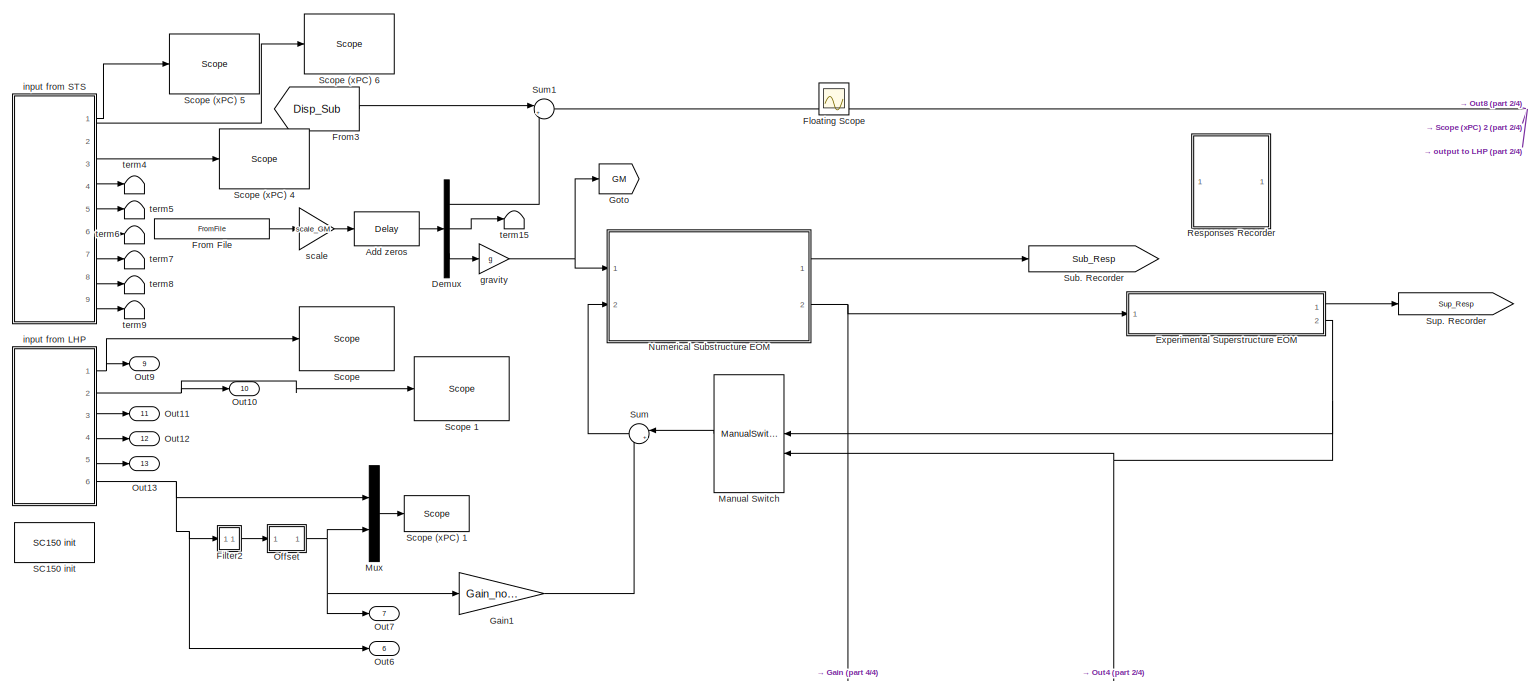
[diagram: root canvas - part 1/4, full width, top band]
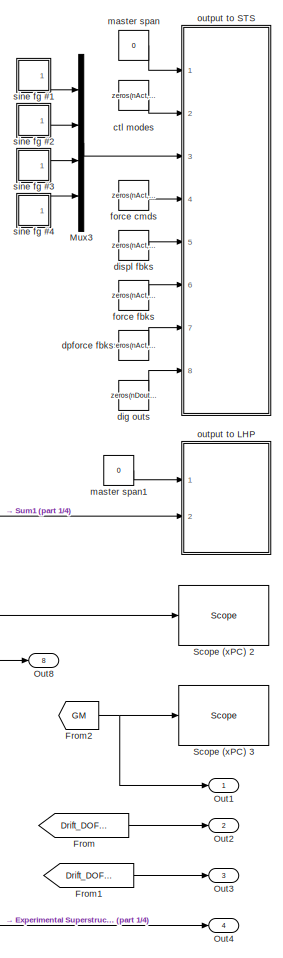
[diagram: root canvas - part 2/4, right side, full height]
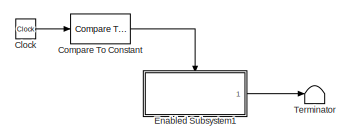
[diagram: root canvas - part 3/4, bottom left region]
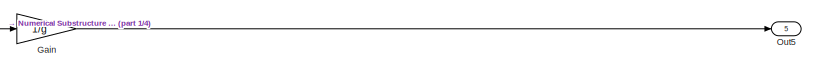
[diagram: root canvas - part 4/4, bottom right region]
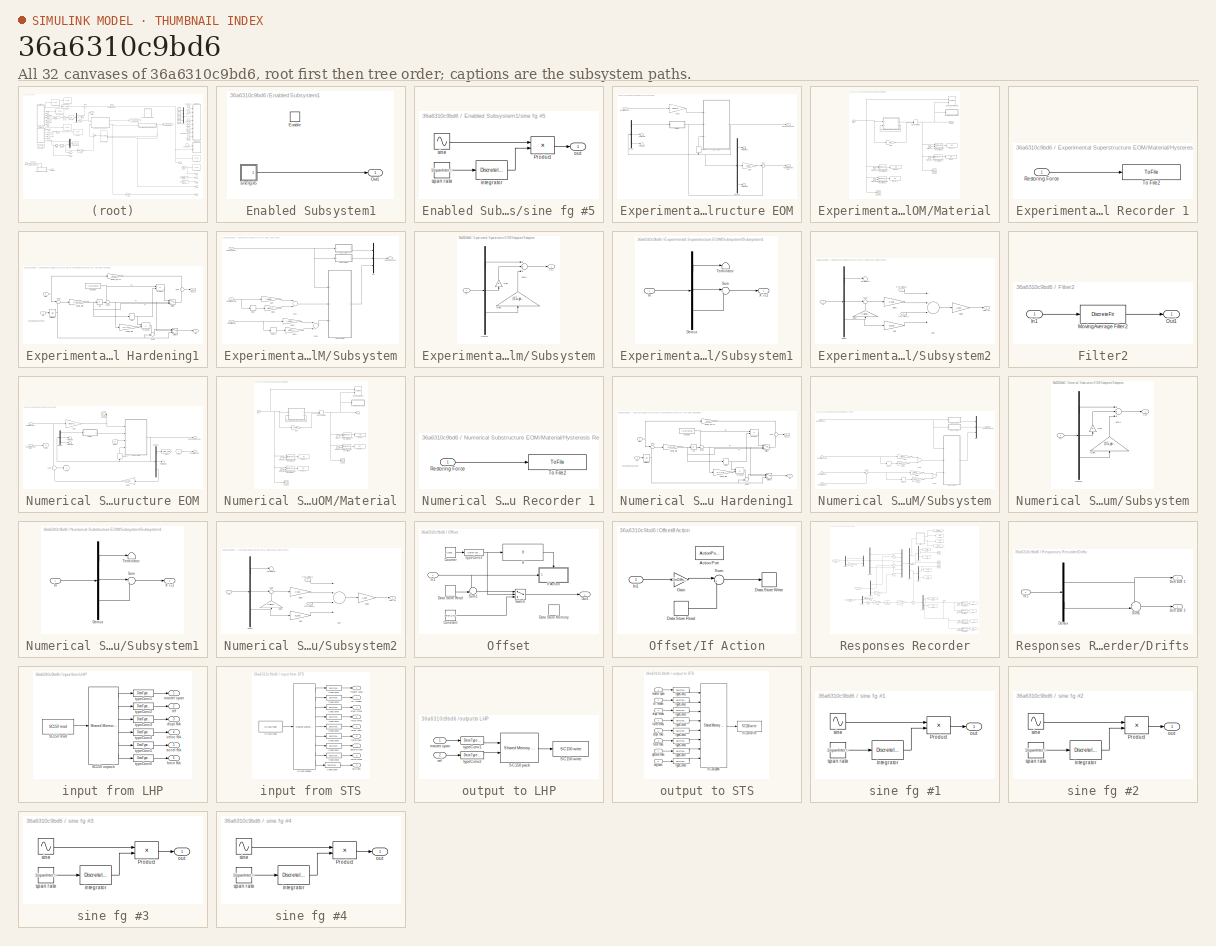
[diagram: thumbnail index - all 32 canvases of the model, root first then tree order]
MODEL slx_36a6310c9bd6
KIND model
CONFIG AbsTol = auto
CONFIG FixedStep = samplePeriod
CONFIG MaxStep = auto
CONFIG MinStep = auto
CONFIG PreLoadFcn = initialize;\nscramInitialize;\nKR_alpha;\nDiscrete_Compensator;
CONFIG RelTol = 1e-3
CONFIG SampleTimeConstraint = Unconstrained
CONFIG Solver = FixedStepDiscrete
CONFIG SolverMode = Auto
CONFIG SolverName = FixedStepDiscrete
CONFIG StartTime = 0.0
CONFIG StopTime = inf
BLOCK [Delay] Add zeros
  DelayLength = onesec
  InitialCondition = 0
  InputPortMap = u0
  Ports = [1, 1]
BLOCK [Clock] Clock
  Decimation = 1
BLOCK [Reference] Compare To Constant  REF=simulink/Logic and Bit
Operations/Compare
To Constant
  Ports = [1, 1]
  SourceBlock = simulink/Logic and Bit\nOperations/Compare\nTo Constant
  SourceType = Compare To Constant
BLOCK [Demux] Demux
  DisplayOption = bar
  Outputs = 3
  Ports = [1, 3]
BLOCK [SubSystem] Enabled Subsystem1
  Ports = [0, 1, 1]
  RequestExecContextInheritance = off
  TreatAsAtomicUnit = on
  Variant = off
BLOCK [EnablePort] Enabled Subsystem1/Enable
  Ports = []
BLOCK [Outport] Enabled Subsystem1/Out1
  IconDisplay = Port number
BLOCK [SubSystem] Enabled Subsystem1/sine fg #5
  Ports = [0, 1]
  RequestExecContextInheritance = off
  Variant = off
BLOCK [Product] Enabled Subsystem1/sine fg #5/Product
  Ports = [2, 1]
  RndMeth = Floor
BLOCK [DiscreteIntegrator] Enabled Subsystem1/sine fg #5/integrator
  ICPrevOutput = DiscIntNeverNeededParam
  ICPrevScaledInput = DiscIntNeverNeededParam
  LimitOutput = on
  LowerSaturationLimit = 0
  Ports = [1, 1]
  SampleTime = -1
  UpperSaturationLimit = 1
BLOCK [Outport] Enabled Subsystem1/sine fg #5/out
  IconDisplay = Port number
BLOCK [Sin] Enabled Subsystem1/sine fg #5/sine
  Amplitude = ampl
  Frequency = 2 * pi * freq
  Ports = [0, 1]
  SampleTime = samplePeriod
BLOCK [Constant] Enabled Subsystem1/sine fg #5/span rate
  Value = 1/spanInterval
BLOCK [SubSystem] Experimental Superstructure EOM
  Ports = [1, 2]
  RequestExecContextInheritance = off
  Variant = off
BLOCK [Delay] Experimental Superstructure EOM/Delay1
  DelayLength = 1
  InputPortMap = u0
  Ports = [1, 1]
BLOCK [Demux] Experimental Superstructure EOM/Demux
  DisplayOption = bar
  Outputs = 3
  Ports = [1, 3]
BLOCK [Demux] Experimental Superstructure EOM/Demux1
  DisplayOption = bar
  Outputs = 3
  Ports = [1, 3]
BLOCK [Inport] Experimental Superstructure EOM/Excitation Sup.
  IconDisplay = Port number
BLOCK [Gain] Experimental Superstructure EOM/Gain
  Gain = Csup
  Multiplication = Matrix(K*u) (u vector)
  OutDataTypeStr = Inherit: Inherit via internal rule
  ParamDataTypeStr = Inherit: Inherit via internal rule
  SaturateOnIntegerOverflow = off
BLOCK [Gain] Experimental Superstructure EOM/Gain2
  Gain = -Msup*a_sup
  Multiplication = Matrix(K*u)
  OutDataTypeStr = Inherit: Inherit via internal rule
  ParamDataTypeStr = Inherit: Inherit via internal rule
  SaturateOnIntegerOverflow = off
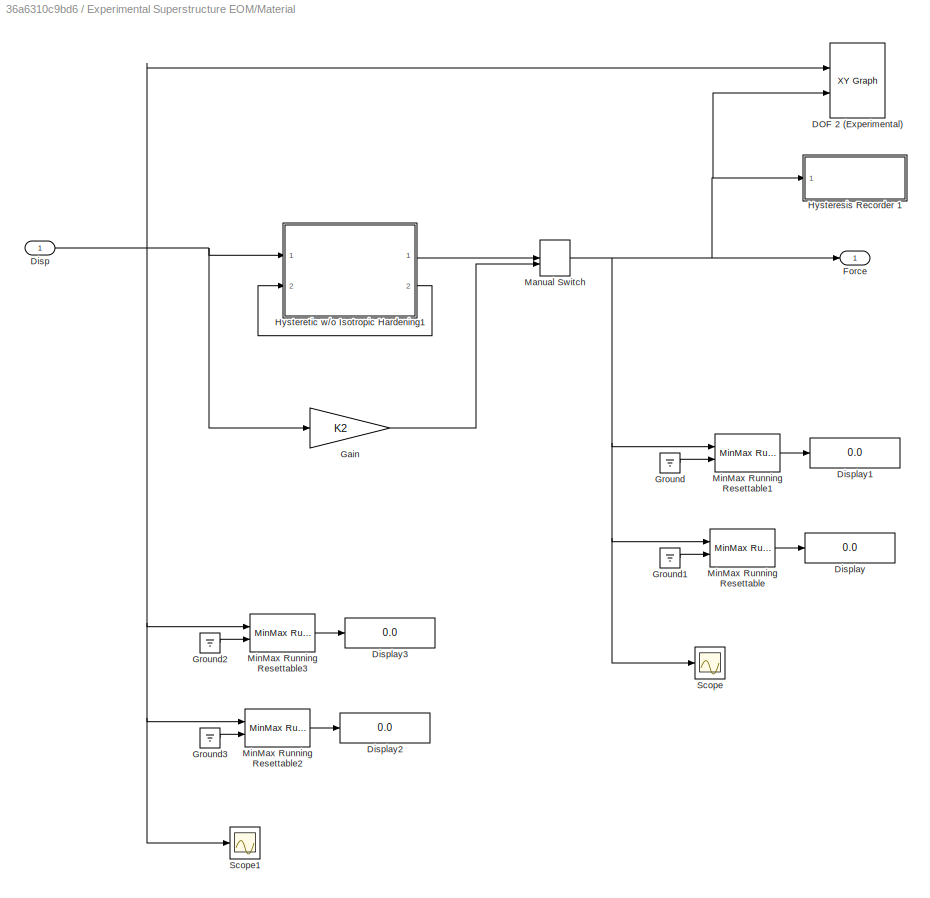
BLOCK [SubSystem] Experimental Superstructure EOM/Material
  Ports = [1, 1]
  RequestExecContextInheritance = off
  Variant = off
BLOCK [Reference] Experimental Superstructure EOM/Material/DOF 2 (Experimental)  REF=simulink/Sinks/XY Graph
  Ports = [2]
  SourceBlock = simulink/Sinks/XY Graph
  SourceType = XY scope.
BLOCK [Inport] Experimental Superstructure EOM/Material/Disp
  IconDisplay = Port number
BLOCK [Display] Experimental Superstructure EOM/Material/Display
  Decimation = 1
  Ports = [1]
BLOCK [Display] Experimental Superstructure EOM/Material/Display1
  Decimation = 1
  Ports = [1]
BLOCK [Display] Experimental Superstructure EOM/Material/Display2
  Decimation = 1
  Ports = [1]
BLOCK [Display] Experimental Superstructure EOM/Material/Display3
  Decimation = 1
  Ports = [1]
BLOCK [Outport] Experimental Superstructure EOM/Material/Force
  IconDisplay = Port number
BLOCK [Gain] Experimental Superstructure EOM/Material/Gain
  Gain = K2
  Multiplication = Matrix(K*u) (u vector)
  OutDataTypeStr = Inherit: Inherit via internal rule
  ParamDataTypeStr = Inherit: Inherit via internal rule
  SaturateOnIntegerOverflow = off
BLOCK [Ground] Experimental Superstructure EOM/Material/Ground
BLOCK [Ground] Experimental Superstructure EOM/Material/Ground1
BLOCK [Ground] Experimental Superstructure EOM/Material/Ground2
BLOCK [Ground] Experimental Superstructure EOM/Material/Ground3
BLOCK [SubSystem] Experimental Superstructure EOM/Material/Hysteresis Recorder 1
  Ports = [1]
  RequestExecContextInheritance = off
  Variant = off
BLOCK [Inport] Experimental Superstructure EOM/Material/Hysteresis Recorder 1/Restoring Force
  IconDisplay = Port number
BLOCK [ToFile] Experimental Superstructure EOM/Material/Hysteresis Recorder 1/To File2
  Filename = Restoring_DOF2.mat
  MatrixName = Restoring_DOF2
  Ports = [1]
BLOCK [SubSystem] Experimental Superstructure EOM/Material/Hysteretic w//o Isotropic Hardening1
  Ports = [2, 2]
  RequestExecContextInheritance = off
  Variant = off
BLOCK [Abs] Experimental Superstructure EOM/Material/Hysteretic w//o Isotropic Hardening1/Abs
BLOCK [Constant] Experimental Superstructure EOM/Material/Hysteretic w//o Isotropic Hardening1/Constant
  Value = (1-a)*K1*uy
BLOCK [Inport] Experimental Superstructure EOM/Material/Hysteretic w//o Isotropic Hardening1/Disp
  IconDisplay = Port number
BLOCK [Gain] Experimental Superstructure EOM/Material/Hysteretic w//o Isotropic Hardening1/Elastic_Force
  Gain = a*K1
BLOCK [Outport] Experimental Superstructure EOM/Material/Hysteretic w//o Isotropic Hardening1/Force
  IconDisplay = Port number
BLOCK [Gain] Experimental Superstructure EOM/Material/Hysteretic w//o Isotropic Hardening1/Plastic_Stiff
  Gain = (1-a)*K1
BLOCK [Gain] Experimental Superstructure EOM/Material/Hysteretic w//o Isotropic Hardening1/Plastic_Stiff1
  Gain = 1/((1-a)*K1)
BLOCK [Product] Experimental Superstructure EOM/Material/Hysteretic w//o Isotropic Hardening1/Product
  InputSameDT = off
  Ports = [2, 1]
  RndMeth = Floor
BLOCK [Product] Experimental Superstructure EOM/Material/Hysteretic w//o Isotropic Hardening1/Product1
  InputSameDT = off
  Ports = [2, 1]
  RndMeth = Floor
BLOCK [Signum] Experimental Superstructure EOM/Material/Hysteretic w//o Isotropic Hardening1/Sign
BLOCK [Sum] Experimental Superstructure EOM/Material/Hysteretic w//o Isotropic Hardening1/Sum
  IconShape = round
  Inputs = +|+
  Ports = [2, 1]
BLOCK [Sum] Experimental Superstructure EOM/Material/Hysteretic w//o Isotropic Hardening1/Sum1
  IconShape = round
  InputSameDT = off
  Inputs = |+-
  OutDataTypeStr = Inherit: Inherit via internal rule
  Ports = [2, 1]
BLOCK [Sum] Experimental Superstructure EOM/Material/Hysteretic w//o Isotropic Hardening1/Sum2
  IconShape = round
  InputSameDT = off
  Inputs = -+|
  OutDataTypeStr = Inherit: Inherit via internal rule
  Ports = [2, 1]
BLOCK [Sum] Experimental Superstructure EOM/Material/Hysteretic w//o Isotropic Hardening1/Sum3
  IconShape = round
  InputSameDT = off
  Inputs = ++|
  OutDataTypeStr = Inherit: Inherit via internal rule
  Ports = [2, 1]
BLOCK [Switch] Experimental Superstructure EOM/Material/Hysteretic w//o Isotropic Hardening1/Switch
  Criteria = u2 > Threshold
  InputSameDT = off
BLOCK [Switch] Experimental Superstructure EOM/Material/Hysteretic w//o Isotropic Hardening1/Switch1
  Criteria = u2 > Threshold
  InputSameDT = off
BLOCK [UnitDelay] Experimental Superstructure EOM/Material/Hysteretic w//o Isotropic Hardening1/Unit Delay
  SampleTime = -1
BLOCK [Outport] Experimental Superstructure EOM/Material/Hysteretic w//o Isotropic Hardening1/Up
  IconDisplay = Port number
  Port = 2
BLOCK [Inport] Experimental Superstructure EOM/Material/Hysteretic w//o Isotropic Hardening1/Upi
  IconDisplay = Port number
  Port = 2
BLOCK [ManualSwitch] Experimental Superstructure EOM/Material/Manual Switch
BLOCK [Reference] Experimental Superstructure EOM/Material/MinMax Running Resettable  REF=simulink/Math
Operations/MinMax
Running
Resettable
  Ports = [2, 1]
  SourceBlock = simulink/Math\nOperations/MinMax\nRunning\nResettable
  SourceType = MinMax Running Resettable
BLOCK [Reference] Experimental Superstructure EOM/Material/MinMax Running Resettable1  REF=simulink/Math
Operations/MinMax
Running
Resettable
  Ports = [2, 1]
  SourceBlock = simulink/Math\nOperations/MinMax\nRunning\nResettable
  SourceType = MinMax Running Resettable
BLOCK [Reference] Experimental Superstructure EOM/Material/MinMax Running Resettable2  REF=simulink/Math
Operations/MinMax
Running
Resettable
  Ports = [2, 1]
  SourceBlock = simulink/Math\nOperations/MinMax\nRunning\nResettable
  SourceType = MinMax Running Resettable
BLOCK [Reference] Experimental Superstructure EOM/Material/MinMax Running Resettable3  REF=simulink/Math
Operations/MinMax
Running
Resettable
  Ports = [2, 1]
  SourceBlock = simulink/Math\nOperations/MinMax\nRunning\nResettable
  SourceType = MinMax Running Resettable
BLOCK [Scope] Experimental Superstructure EOM/Material/Scope
  Ports = [1]
  ScopeSpecificationString = Simulink.scopes.TimeScopeBlockCfg('CurrentConfiguration', extmgr.ConfigurationSet(extmgr.Configuration('Core','General UI',true),extmgr.Configuration('Core','Source UI',true),extmgr.Configuration('Sources','WiredSimulink',true,'DataLoggingVariableName','ScopeData3'),extmgr.Configuration('Visuals','Time Domain',true,'SerializedDisplays',{struct('MinYLimReal','-141.09685','MaxYLimReal','138.41407','...<+1440ch>
BLOCK [Scope] Experimental Superstructure EOM/Material/Scope1
  Ports = [1]
  ScopeSpecificationString = Simulink.scopes.TimeScopeBlockCfg('CurrentConfiguration', extmgr.ConfigurationSet(extmgr.Configuration('Core','General UI',true),extmgr.Configuration('Core','Source UI',true),extmgr.Configuration('Sources','WiredSimulink',true,'DataLoggingVariableName','ScopeData4'),extmgr.Configuration('Visuals','Time Domain',true,'SerializedDisplays',{struct('MinYLimReal','-3.56873','MaxYLimReal','3.30618','YLab...<+1393ch>
BLOCK [Outport] Experimental Superstructure EOM/Resisting Force Sup.
  IconDisplay = Port number
  Port = 2
BLOCK [Outport] Experimental Superstructure EOM/Responses Sup.
  IconDisplay = Port number
BLOCK [SubSystem] Experimental Superstructure EOM/Subsystem
  Ports = [3, 1]
  RequestExecContextInheritance = off
  Variant = off
BLOCK [Delay] Experimental Superstructure EOM/Subsystem/Delay
  DelayLength = 1
  InputPortMap = u0
  Ports = [1, 1]
BLOCK [Delay] Experimental Superstructure EOM/Subsystem/Delay1
  DelayLength = 1
  InputPortMap = u0
  Ports = [1, 1]
BLOCK [Inport] Experimental Superstructure EOM/Subsystem/Excitation Force
  IconDisplay = Port number
BLOCK [Gain] Experimental Superstructure EOM/Subsystem/Gain
  Gain = 1-alpha_f_sup
  OutDataTypeStr = Inherit: Inherit via internal rule
  ParamDataTypeStr = Inherit: Inherit via internal rule
  SaturateOnIntegerOverflow = off
BLOCK [Gain] Experimental Superstructure EOM/Subsystem/Gain1
  Gain = alpha_f_sup
  OutDataTypeStr = Inherit: Inherit via internal rule
  ParamDataTypeStr = Inherit: Inherit via internal rule
  SaturateOnIntegerOverflow = off
BLOCK [Gain] Experimental Superstructure EOM/Subsystem/Gain2
  Gain = 1-alpha_f_sup
  OutDataTypeStr = Inherit: Inherit via internal rule
  ParamDataTypeStr = Inherit: Inherit via internal rule
  SaturateOnIntegerOverflow = off
BLOCK [Gain] Experimental Superstructure EOM/Subsystem/Gain3
  Gain = alpha_f_sup
  OutDataTypeStr = Inherit: Inherit via internal rule
  ParamDataTypeStr = Inherit: Inherit via internal rule
  SaturateOnIntegerOverflow = off
BLOCK [Mux] Experimental Superstructure EOM/Subsystem/Mux
  DisplayOption = bar
  Inputs = 3
  Ports = [3, 1]
BLOCK [Inport] Experimental Superstructure EOM/Subsystem/Responses i
  IconDisplay = Port number
  Port = 3
BLOCK [Outport] Experimental Superstructure EOM/Subsystem/Responses i+1
  IconDisplay = Port number
BLOCK [Inport] Experimental Superstructure EOM/Subsystem/Restoring A//E
  IconDisplay = Port number
  Port = 2
BLOCK [SubSystem] Experimental Superstructure EOM/Subsystem/Subsystem
  Ports = [1, 1]
  RequestExecContextInheritance = off
  Variant = off
BLOCK [Demux] Experimental Superstructure EOM/Subsystem/Subsystem/Demux
  DisplayOption = bar
  Outputs = 3
  Ports = [1, 3]
BLOCK [Gain] Experimental Superstructure EOM/Subsystem/Subsystem/Gain
  Gain = dt
  OutDataTypeStr = Inherit: Inherit via internal rule
  ParamDataTypeStr = Inherit: Inherit via internal rule
  SaturateOnIntegerOverflow = off
BLOCK [Gain] Experimental Superstructure EOM/Subsystem/Subsystem/Gain1
  Gain = (0.5+gamma_sup)*dt
  OutDataTypeStr = Inherit: Inherit via internal rule
  ParamDataTypeStr = Inherit: Inherit via internal rule
  SaturateOnIntegerOverflow = off
BLOCK [Inport] Experimental Superstructure EOM/Subsystem/Subsystem/In
  IconDisplay = Port number
BLOCK [Sum] Experimental Superstructure EOM/Subsystem/Subsystem/Sum1
  InputSameDT = off
  Inputs = +++
  OutDataTypeStr = Inherit: Inherit via internal rule
  Ports = [3, 1]
  SaturateOnIntegerOverflow = off
BLOCK [Outport] Experimental Superstructure EOM/Subsystem/Subsystem/X i+1
  IconDisplay = Port number
BLOCK [SubSystem] Experimental Superstructure EOM/Subsystem/Subsystem1
  Ports = [1, 1]
  RequestExecContextInheritance = off
  Variant = off
BLOCK [Demux] Experimental Superstructure EOM/Subsystem/Subsystem1/Demux
  DisplayOption = bar
  Outputs = 3
  Ports = [1, 3]
BLOCK [Inport] Experimental Superstructure EOM/Subsystem/Subsystem1/In
  IconDisplay = Port number
BLOCK [Sum] Experimental Superstructure EOM/Subsystem/Subsystem1/Sum
  IconShape = round
  InputSameDT = off
  Inputs = |++
  OutDataTypeStr = Inherit: Inherit via internal rule
  Ports = [2, 1]
  SaturateOnIntegerOverflow = off
BLOCK [Terminator] Experimental Superstructure EOM/Subsystem/Subsystem1/Terminator
BLOCK [Outport] Experimental Superstructure EOM/Subsystem/Subsystem1/X' i+1
  IconDisplay = Port number
BLOCK [SubSystem] Experimental Superstructure EOM/Subsystem/Subsystem2
  Ports = [3, 1]
  RequestExecContextInheritance = off
  Variant = off
BLOCK [Demux] Experimental Superstructure EOM/Subsystem/Subsystem2/Demux
  DisplayOption = bar
  Outputs = 3
  Ports = [1, 3]
BLOCK [Inport] Experimental Superstructure EOM/Subsystem/Subsystem2/F i+1-alpha_f
  IconDisplay = Port number
  Port = 2
BLOCK [Gain] Experimental Superstructure EOM/Subsystem/Subsystem2/Gain
  Gain = B_sup
  Multiplication = Matrix(K*u) (u vector)
  OutDataTypeStr = Inherit: Inherit via internal rule
  ParamDataTypeStr = Inherit: Inherit via internal rule
  SaturateOnIntegerOverflow = off
BLOCK [Gain] Experimental Superstructure EOM/Subsystem/Subsystem2/Gain1
  Gain = 1-alpha_f_sup
  OutDataTypeStr = Inherit: Inherit via internal rule
  ParamDataTypeStr = Inherit: Inherit via internal rule
  SaturateOnIntegerOverflow = off
BLOCK [Gain] Experimental Superstructure EOM/Subsystem/Subsystem2/Gain2
  Gain = Csup
  Multiplication = Matrix(K*u) (u vector)
  OutDataTypeStr = Inherit: Inherit via internal rule
  ParamDataTypeStr = Inherit: Inherit via internal rule
  SaturateOnIntegerOverflow = off
BLOCK [Gain] Experimental Superstructure EOM/Subsystem/Subsystem2/Gain3
  Gain = A_sup
  Multiplication = Matrix(K*u) (u vector)
  OutDataTypeStr = Inherit: Inherit via internal rule
  ParamDataTypeStr = Inherit: Inherit via internal rule
  SaturateOnIntegerOverflow = off
BLOCK [Inport] Experimental Superstructure EOM/Subsystem/Subsystem2/In
  IconDisplay = Port number
BLOCK [Inport] Experimental Superstructure EOM/Subsystem/Subsystem2/R i+1-alpha_f
  IconDisplay = Port number
  Port = 3
BLOCK [Sum] Experimental Superstructure EOM/Subsystem/Subsystem2/Sum
  InputSameDT = off
  Inputs = +---
  OutDataTypeStr = Inherit: Inherit via internal rule
  Ports = [4, 1]
  SaturateOnIntegerOverflow = off
BLOCK [Sum] Experimental Superstructure EOM/Subsystem/Subsystem2/Sum1
  IconShape = round
  InputSameDT = off
  Inputs = |++
  OutDataTypeStr = Inherit: Inherit via internal rule
  Ports = [2, 1]
  SaturateOnIntegerOverflow = off
BLOCK [Terminator] Experimental Superstructure EOM/Subsystem/Subsystem2/Terminator
BLOCK [Outport] Experimental Superstructure EOM/Subsystem/Subsystem2/X'hat i+1
  IconDisplay = Port number
BLOCK [Sum] Experimental Superstructure EOM/Subsystem/Sum
  InputSameDT = off
  OutDataTypeStr = Inherit: Inherit via internal rule
  Ports = [2, 1]
  SaturateOnIntegerOverflow = off
BLOCK [Sum] Experimental Superstructure EOM/Subsystem/Sum1
  InputSameDT = off
  OutDataTypeStr = Inherit: Inherit via internal rule
  Ports = [2, 1]
  SaturateOnIntegerOverflow = off
BLOCK [Sum] Experimental Superstructure EOM/Sum
  IconShape = round
  InputSameDT = off
  Inputs = |++
  OutDataTypeStr = Inherit: Inherit via internal rule
  Ports = [2, 1]
  SaturateOnIntegerOverflow = off
BLOCK [Terminator] Experimental Superstructure EOM/Terminator
BLOCK [Terminator] Experimental Superstructure EOM/Terminator1
BLOCK [Terminator] Experimental Superstructure EOM/Terminator2
BLOCK [Terminator] Experimental Superstructure EOM/Terminator3
BLOCK [SubSystem] Filter2
  Ports = [1, 1]
  RequestExecContextInheritance = off
  ShowPortLabels = none
  Variant = off
BLOCK [Inport] Filter2/In1
  IconDisplay = Port number
BLOCK [DiscreteFir] Filter2/MovingAverage Filter2
  Coefficients = 1/numSample*ones(1,numSample)
  InputPortMap = u0
  OutputPortMap = o0
  Ports = [1, 1]
BLOCK [Outport] Filter2/Out1
  IconDisplay = Port number
BLOCK [Scope] Floating Scope
  IOType = viewer
  Ports = []
  ScopeSpecificationString = Simulink.scopes.TimeScopeBlockCfg('CurrentConfiguration', extmgr.ConfigurationSet(extmgr.Configuration('Core','General UI',true),extmgr.Configuration('Core','Source UI',true),extmgr.Configuration('Sources','WiredSimulink',true,'DataLoggingSaveFormat','StructureWithTime','DataLoggingLimitDataPoints',true,'DataLoggingDecimation','1','DataLoggingDecimateData',true),extmgr.Configuration('Visuals','Tim...<+890ch>
BLOCK [From] From
  GotoTag = Drift_DOF_1
  TagVisibility = global
BLOCK [FromFile] From File
  FileName = lo89_2048Hz_All.mat
  SampleTime = samplePeriod
BLOCK [From] From1
  GotoTag = Drift_DOF_2
  TagVisibility = global
BLOCK [From] From2
  GotoTag = GM
BLOCK [From] From3
  GotoTag = Disp_Sub
  TagVisibility = global
BLOCK [Gain] Gain
  Gain = 1/g
  OutDataTypeStr = Inherit: Inherit via internal rule
  ParamDataTypeStr = Inherit: Inherit via internal rule
  SaturateOnIntegerOverflow = off
BLOCK [Gain] Gain1
  Gain = Gain_noise
  OutDataTypeStr = Inherit: Inherit via internal rule
  ParamDataTypeStr = Inherit: Inherit via internal rule
  SaturateOnIntegerOverflow = off
BLOCK [Goto] Goto
  GotoTag = GM
BLOCK [ManualSwitch] Manual Switch
  CurrentSetting = 0
BLOCK [Mux] Mux
  DisplayOption = bar
  Inputs = 2
  Ports = [2, 1]
BLOCK [Mux] Mux3
  DisplayOption = bar
  Inputs = nAct
  Ports = [4, 1]
BLOCK [SubSystem] Numerical Substructure EOM
  Ports = [2, 2]
  RequestExecContextInheritance = off
  Variant = off
BLOCK [Delay] Numerical Substructure EOM/Delay1
  DelayLength = 1
  InputPortMap = u0
  Ports = [1, 1]
BLOCK [Demux] Numerical Substructure EOM/Demux
  DisplayOption = bar
  Outputs = 3
  Ports = [1, 3]
BLOCK [Demux] Numerical Substructure EOM/Demux1
  DisplayOption = bar
  Outputs = 3
  Ports = [1, 3]
BLOCK [Inport] Numerical Substructure EOM/Excitation Sub.
  IconDisplay = Port number
BLOCK [Outport] Numerical Substructure EOM/Excitation Sup.
  IconDisplay = Port number
  Port = 2
BLOCK [From] Numerical Substructure EOM/From
BLOCK [From] Numerical Substructure EOM/From1
  GotoTag = B
BLOCK [Gain] Numerical Substructure EOM/Gain
  Gain = -Msub*a_sub
  Multiplication = Matrix(K*u)
  OutDataTypeStr = Inherit: Inherit via internal rule
  ParamDataTypeStr = Inherit: Inherit via internal rule
  SaturateOnIntegerOverflow = off
BLOCK [Gain] Numerical Substructure EOM/Gain1
  Gain = D_sub
  Multiplication = Matrix(K*u) (u vector)
  OutDataTypeStr = Inherit: Inherit via internal rule
  ParamDataTypeStr = Inherit: Inherit via internal rule
  SaturateOnIntegerOverflow = off
BLOCK [Goto] Numerical Substructure EOM/Goto
BLOCK [Goto] Numerical Substructure EOM/Goto1
  GotoTag = B
BLOCK [Goto] Numerical Substructure EOM/Goto2
  GotoTag = Disp_Sub
  TagVisibility = global
BLOCK [SubSystem] Numerical Substructure EOM/Material
  Ports = [1, 1]
  RequestExecContextInheritance = off
  Variant = off
BLOCK [Reference] Numerical Substructure EOM/Material/DOF 1 (Numerical)  REF=simulink/Sinks/XY Graph
  Ports = [2]
  SourceBlock = simulink/Sinks/XY Graph
  SourceType = XY scope.
BLOCK [Inport] Numerical Substructure EOM/Material/Disp
  IconDisplay = Port number
BLOCK [Display] Numerical Substructure EOM/Material/Display
  Decimation = 1
  Ports = [1]
BLOCK [Display] Numerical Substructure EOM/Material/Display1
  Decimation = 1
  Ports = [1]
BLOCK [Display] Numerical Substructure EOM/Material/Display2
  Decimation = 1
  Ports = [1]
BLOCK [Display] Numerical Substructure EOM/Material/Display3
  Decimation = 1
  Ports = [1]
BLOCK [Outport] Numerical Substructure EOM/Material/Force
  IconDisplay = Port number
BLOCK [Gain] Numerical Substructure EOM/Material/Gain
  Gain = Ksub
  Multiplication = Matrix(K*u) (u vector)
  OutDataTypeStr = Inherit: Inherit via internal rule
  ParamDataTypeStr = Inherit: Inherit via internal rule
  SaturateOnIntegerOverflow = off
BLOCK [Ground] Numerical Substructure EOM/Material/Ground
BLOCK [Ground] Numerical Substructure EOM/Material/Ground1
BLOCK [Ground] Numerical Substructure EOM/Material/Ground2
BLOCK [Ground] Numerical Substructure EOM/Material/Ground3
BLOCK [SubSystem] Numerical Substructure EOM/Material/Hysteresis Recorder 1
  Ports = [1]
  RequestExecContextInheritance = off
  Variant = off
BLOCK [Inport] Numerical Substructure EOM/Material/Hysteresis Recorder 1/Restoring Force
  IconDisplay = Port number
BLOCK [ToFile] Numerical Substructure EOM/Material/Hysteresis Recorder 1/To File2
  Filename = Restoring_DOF1.mat
  MatrixName = Restoring_DOF1
  Ports = [1]
BLOCK [SubSystem] Numerical Substructure EOM/Material/Hysteretic w//o Isotropic Hardening1
  Ports = [2, 2]
  RequestExecContextInheritance = off
  Variant = off
BLOCK [Abs] Numerical Substructure EOM/Material/Hysteretic w//o Isotropic Hardening1/Abs
BLOCK [Constant] Numerical Substructure EOM/Material/Hysteretic w//o Isotropic Hardening1/Constant
  Value = (1-a)*K1*uy
BLOCK [Inport] Numerical Substructure EOM/Material/Hysteretic w//o Isotropic Hardening1/Disp
  IconDisplay = Port number
BLOCK [Gain] Numerical Substructure EOM/Material/Hysteretic w//o Isotropic Hardening1/Elastic_Force
  Gain = a*K1
BLOCK [Outport] Numerical Substructure EOM/Material/Hysteretic w//o Isotropic Hardening1/Force
  IconDisplay = Port number
BLOCK [Gain] Numerical Substructure EOM/Material/Hysteretic w//o Isotropic Hardening1/Plastic_Stiff
  Gain = (1-a)*K1
BLOCK [Gain] Numerical Substructure EOM/Material/Hysteretic w//o Isotropic Hardening1/Plastic_Stiff1
  Gain = 1/((1-a)*K1)
BLOCK [Product] Numerical Substructure EOM/Material/Hysteretic w//o Isotropic Hardening1/Product
  InputSameDT = off
  Ports = [2, 1]
  RndMeth = Floor
BLOCK [Product] Numerical Substructure EOM/Material/Hysteretic w//o Isotropic Hardening1/Product1
  InputSameDT = off
  Ports = [2, 1]
  RndMeth = Floor
BLOCK [Signum] Numerical Substructure EOM/Material/Hysteretic w//o Isotropic Hardening1/Sign
BLOCK [Sum] Numerical Substructure EOM/Material/Hysteretic w//o Isotropic Hardening1/Sum
  IconShape = round
  Inputs = +|+
  Ports = [2, 1]
BLOCK [Sum] Numerical Substructure EOM/Material/Hysteretic w//o Isotropic Hardening1/Sum1
  IconShape = round
  InputSameDT = off
  Inputs = |+-
  OutDataTypeStr = Inherit: Inherit via internal rule
  Ports = [2, 1]
BLOCK [Sum] Numerical Substructure EOM/Material/Hysteretic w//o Isotropic Hardening1/Sum2
  IconShape = round
  InputSameDT = off
  Inputs = -+|
  OutDataTypeStr = Inherit: Inherit via internal rule
  Ports = [2, 1]
BLOCK [Sum] Numerical Substructure EOM/Material/Hysteretic w//o Isotropic Hardening1/Sum3
  IconShape = round
  InputSameDT = off
  Inputs = ++|
  OutDataTypeStr = Inherit: Inherit via internal rule
  Ports = [2, 1]
BLOCK [Switch] Numerical Substructure EOM/Material/Hysteretic w//o Isotropic Hardening1/Switch
  Criteria = u2 > Threshold
  InputSameDT = off
BLOCK [Switch] Numerical Substructure EOM/Material/Hysteretic w//o Isotropic Hardening1/Switch1
  Criteria = u2 > Threshold
  InputSameDT = off
BLOCK [UnitDelay] Numerical Substructure EOM/Material/Hysteretic w//o Isotropic Hardening1/Unit Delay
  SampleTime = -1
BLOCK [Outport] Numerical Substructure EOM/Material/Hysteretic w//o Isotropic Hardening1/Up
  IconDisplay = Port number
  Port = 2
BLOCK [Inport] Numerical Substructure EOM/Material/Hysteretic w//o Isotropic Hardening1/Upi
  IconDisplay = Port number
  Port = 2
BLOCK [ManualSwitch] Numerical Substructure EOM/Material/Manual Switch
  CurrentSetting = 0
BLOCK [Reference] Numerical Substructure EOM/Material/MinMax Running Resettable  REF=simulink/Math
Operations/MinMax
Running
Resettable
  Ports = [2, 1]
  SourceBlock = simulink/Math\nOperations/MinMax\nRunning\nResettable
  SourceType = MinMax Running Resettable
BLOCK [Reference] Numerical Substructure EOM/Material/MinMax Running Resettable1  REF=simulink/Math
Operations/MinMax
Running
Resettable
  Ports = [2, 1]
  SourceBlock = simulink/Math\nOperations/MinMax\nRunning\nResettable
  SourceType = MinMax Running Resettable
BLOCK [Reference] Numerical Substructure EOM/Material/MinMax Running Resettable2  REF=simulink/Math
Operations/MinMax
Running
Resettable
  Ports = [2, 1]
  SourceBlock = simulink/Math\nOperations/MinMax\nRunning\nResettable
  SourceType = MinMax Running Resettable
BLOCK [Reference] Numerical Substructure EOM/Material/MinMax Running Resettable3  REF=simulink/Math
Operations/MinMax
Running
Resettable
  Ports = [2, 1]
  SourceBlock = simulink/Math\nOperations/MinMax\nRunning\nResettable
  SourceType = MinMax Running Resettable
BLOCK [Scope] Numerical Substructure EOM/Material/Scope
  Ports = [1]
  ScopeSpecificationString = Simulink.scopes.TimeScopeBlockCfg('CurrentConfiguration', extmgr.ConfigurationSet(extmgr.Configuration('Core','General UI',true),extmgr.Configuration('Core','Source UI',true),extmgr.Configuration('Sources','WiredSimulink',true,'DataLoggingVariableName','ScopeData1'),extmgr.Configuration('Visuals','Time Domain',true,'SerializedDisplays',{struct('MinYLimReal','-141.09685','MaxYLimReal','138.41407','...<+1440ch>
BLOCK [Scope] Numerical Substructure EOM/Material/Scope1
  Ports = [1]
  ScopeSpecificationString = Simulink.scopes.TimeScopeBlockCfg('CurrentConfiguration', extmgr.ConfigurationSet(extmgr.Configuration('Core','General UI',true),extmgr.Configuration('Core','Source UI',true),extmgr.Configuration('Sources','WiredSimulink',true,'DataLoggingVariableName','ScopeData2'),extmgr.Configuration('Visuals','Time Domain',true,'SerializedDisplays',{struct('MinYLimReal','-3.56873','MaxYLimReal','3.30618','YLab...<+1389ch>
BLOCK [Inport] Numerical Substructure EOM/Resisting Force Sup.
  IconDisplay = Port number
  Port = 2
BLOCK [Outport] Numerical Substructure EOM/Responses Sub.
  IconDisplay = Port number
BLOCK [Scope] Numerical Substructure EOM/Scope1
  Ports = [1]
  ScopeSpecificationString = Simulink.scopes.TimeScopeBlockCfg('CurrentConfiguration', extmgr.ConfigurationSet(extmgr.Configuration('Core','General UI',true),extmgr.Configuration('Core','Source UI',true),extmgr.Configuration('Sources','WiredSimulink',true,'DataLoggingVariableName','ScopeData1','DataLoggingLimitDataPoints',true,'DataLoggingSaveFormat','Array','DataLoggingDecimation','1','DataLoggingDecimateData',true),extmgr.C...<+183ch>
BLOCK [SubSystem] Numerical Substructure EOM/Subsystem
  Ports = [4, 1]
  RequestExecContextInheritance = off
  Variant = off
BLOCK [Delay] Numerical Substructure EOM/Subsystem/Delay
  DelayLength = 1
  InputPortMap = u0
  Ports = [1, 1]
BLOCK [Delay] Numerical Substructure EOM/Subsystem/Delay1
  DelayLength = 1
  InputPortMap = u0
  Ports = [1, 1]
BLOCK [Inport] Numerical Substructure EOM/Subsystem/Excitation Force
  IconDisplay = Port number
BLOCK [Gain] Numerical Substructure EOM/Subsystem/Gain
  Gain = 1-alpha_f_sub
  OutDataTypeStr = Inherit: Inherit via internal rule
  ParamDataTypeStr = Inherit: Inherit via internal rule
  SaturateOnIntegerOverflow = off
BLOCK [Gain] Numerical Substructure EOM/Subsystem/Gain1
  Gain = alpha_f_sub
  OutDataTypeStr = Inherit: Inherit via internal rule
  ParamDataTypeStr = Inherit: Inherit via internal rule
  SaturateOnIntegerOverflow = off
BLOCK [Gain] Numerical Substructure EOM/Subsystem/Gain2
  Gain = 1-alpha_f_sub
  OutDataTypeStr = Inherit: Inherit via internal rule
  ParamDataTypeStr = Inherit: Inherit via internal rule
  SaturateOnIntegerOverflow = off
BLOCK [Gain] Numerical Substructure EOM/Subsystem/Gain3
  Gain = alpha_f_sub
  OutDataTypeStr = Inherit: Inherit via internal rule
  ParamDataTypeStr = Inherit: Inherit via internal rule
  SaturateOnIntegerOverflow = off
BLOCK [Mux] Numerical Substructure EOM/Subsystem/Mux
  DisplayOption = bar
  Inputs = 3
  Ports = [3, 1]
BLOCK [Inport] Numerical Substructure EOM/Subsystem/Resisting Sup
  IconDisplay = Port number
  Port = 3
BLOCK [Inport] Numerical Substructure EOM/Subsystem/Responses i
  IconDisplay = Port number
  Port = 4
BLOCK [Outport] Numerical Substructure EOM/Subsystem/Responses i+1
  IconDisplay = Port number
BLOCK [Inport] Numerical Substructure EOM/Subsystem/Restoring Sub
  IconDisplay = Port number
  Port = 2
BLOCK [SubSystem] Numerical Substructure EOM/Subsystem/Subsystem
  Ports = [1, 1]
  RequestExecContextInheritance = off
  Variant = off
BLOCK [Demux] Numerical Substructure EOM/Subsystem/Subsystem/Demux
  DisplayOption = bar
  Outputs = 3
  Ports = [1, 3]
BLOCK [Gain] Numerical Substructure EOM/Subsystem/Subsystem/Gain
  Gain = dt
  OutDataTypeStr = Inherit: Inherit via internal rule
  ParamDataTypeStr = Inherit: Inherit via internal rule
  SaturateOnIntegerOverflow = off
BLOCK [Gain] Numerical Substructure EOM/Subsystem/Subsystem/Gain1
  Gain = (0.5+gamma_sub)*dt
  OutDataTypeStr = Inherit: Inherit via internal rule
  ParamDataTypeStr = Inherit: Inherit via internal rule
  SaturateOnIntegerOverflow = off
BLOCK [Inport] Numerical Substructure EOM/Subsystem/Subsystem/In
  IconDisplay = Port number
BLOCK [Sum] Numerical Substructure EOM/Subsystem/Subsystem/Sum1
  InputSameDT = off
  Inputs = +++
  OutDataTypeStr = Inherit: Inherit via internal rule
  Ports = [3, 1]
  SaturateOnIntegerOverflow = off
BLOCK [Outport] Numerical Substructure EOM/Subsystem/Subsystem/X i+1
  IconDisplay = Port number
BLOCK [SubSystem] Numerical Substructure EOM/Subsystem/Subsystem1
  Ports = [1, 1]
  RequestExecContextInheritance = off
  Variant = off
BLOCK [Demux] Numerical Substructure EOM/Subsystem/Subsystem1/Demux
  DisplayOption = bar
  Outputs = 3
  Ports = [1, 3]
BLOCK [Inport] Numerical Substructure EOM/Subsystem/Subsystem1/In
  IconDisplay = Port number
BLOCK [Sum] Numerical Substructure EOM/Subsystem/Subsystem1/Sum
  IconShape = round
  InputSameDT = off
  Inputs = |++
  OutDataTypeStr = Inherit: Inherit via internal rule
  Ports = [2, 1]
  SaturateOnIntegerOverflow = off
BLOCK [Terminator] Numerical Substructure EOM/Subsystem/Subsystem1/Terminator
BLOCK [Outport] Numerical Substructure EOM/Subsystem/Subsystem1/X' i+1
  IconDisplay = Port number
BLOCK [SubSystem] Numerical Substructure EOM/Subsystem/Subsystem2
  Ports = [3, 1]
  RequestExecContextInheritance = off
  Variant = off
BLOCK [Demux] Numerical Substructure EOM/Subsystem/Subsystem2/Demux
  DisplayOption = bar
  Outputs = 3
  Ports = [1, 3]
BLOCK [Inport] Numerical Substructure EOM/Subsystem/Subsystem2/F i+1-alpha_f
  IconDisplay = Port number
  Port = 2
BLOCK [Gain] Numerical Substructure EOM/Subsystem/Subsystem2/Gain
  Gain = B_sub
  Multiplication = Matrix(K*u) (u vector)
  OutDataTypeStr = Inherit: Inherit via internal rule
  ParamDataTypeStr = Inherit: Inherit via internal rule
  SaturateOnIntegerOverflow = off
BLOCK [Gain] Numerical Substructure EOM/Subsystem/Subsystem2/Gain1
  Gain = 1-alpha_f_sub
  OutDataTypeStr = Inherit: Inherit via internal rule
  ParamDataTypeStr = Inherit: Inherit via internal rule
  SaturateOnIntegerOverflow = off
BLOCK [Gain] Numerical Substructure EOM/Subsystem/Subsystem2/Gain2
  Gain = Csub
  Multiplication = Matrix(K*u) (u vector)
  OutDataTypeStr = Inherit: Inherit via internal rule
  ParamDataTypeStr = Inherit: Inherit via internal rule
  SaturateOnIntegerOverflow = off
BLOCK [Gain] Numerical Substructure EOM/Subsystem/Subsystem2/Gain3
  Gain = A_sub
  Multiplication = Matrix(K*u) (u vector)
  OutDataTypeStr = Inherit: Inherit via internal rule
  ParamDataTypeStr = Inherit: Inherit via internal rule
  SaturateOnIntegerOverflow = off
BLOCK [Inport] Numerical Substructure EOM/Subsystem/Subsystem2/In
  IconDisplay = Port number
BLOCK [Inport] Numerical Substructure EOM/Subsystem/Subsystem2/R i+1-alpha_f
  IconDisplay = Port number
  Port = 3
BLOCK [Sum] Numerical Substructure EOM/Subsystem/Subsystem2/Sum
  InputSameDT = off
  Inputs = +---
  OutDataTypeStr = Inherit: Inherit via internal rule
  Ports = [4, 1]
  SaturateOnIntegerOverflow = off
BLOCK [Sum] Numerical Substructure EOM/Subsystem/Subsystem2/Sum1
  IconShape = round
  InputSameDT = off
  Inputs = |++
  OutDataTypeStr = Inherit: Inherit via internal rule
  Ports = [2, 1]
  SaturateOnIntegerOverflow = off
BLOCK [Terminator] Numerical Substructure EOM/Subsystem/Subsystem2/Terminator
BLOCK [Outport] Numerical Substructure EOM/Subsystem/Subsystem2/X'hat i+1
  IconDisplay = Port number
BLOCK [Sum] Numerical Substructure EOM/Subsystem/Sum
  InputSameDT = off
  OutDataTypeStr = Inherit: Inherit via internal rule
  Ports = [2, 1]
  SaturateOnIntegerOverflow = off
BLOCK [Sum] Numerical Substructure EOM/Subsystem/Sum1
  InputSameDT = off
  OutDataTypeStr = Inherit: Inherit via internal rule
  Ports = [2, 1]
  SaturateOnIntegerOverflow = off
BLOCK [Sum] Numerical Substructure EOM/Subsystem/Sum3
  IconShape = round
  InputSameDT = off
  Inputs = |+-
  OutDataTypeStr = Inherit: Inherit via internal rule
  Ports = [2, 1]
  SaturateOnIntegerOverflow = off
BLOCK [Sum] Numerical Substructure EOM/Sum1
  IconShape = round
  InputSameDT = off
  Inputs = +||+
  OutDataTypeStr = Inherit: Inherit via internal rule
  Ports = [2, 1]
  SaturateOnIntegerOverflow = off
BLOCK [Terminator] Numerical Substructure EOM/Terminator
BLOCK [Terminator] Numerical Substructure EOM/Terminator1
BLOCK [Terminator] Numerical Substructure EOM/Terminator2
BLOCK [SubSystem] Offset
  Ports = [1, 1]
  RequestExecContextInheritance = off
  Variant = off
BLOCK [Constant] Offset/Constant
  Value = zeros(1,nS)
BLOCK [Reference] Offset/Counter  REF=simulink/Sources/Counter
Free-Running
  Ports = [0, 1]
  SourceBlock = simulink/Sources/Counter\nFree-Running
  SourceType = Counter Free-Running
BLOCK [DataStoreMemory] Offset/Data Store Memory
  DataStoreName = x0
  InitialValue = zeros(1,nS)
  OutDataTypeStr = double
  SignalType = real
BLOCK [DataStoreRead] Offset/Data Store Read
  DataStoreName = x0
  Ports = [0, 1]
  SampleTime = controlPeriod
BLOCK [If] Offset/If
  IfExpression = u1 < nOffset
  Ports = [1, 1]
  ShowElse = off
BLOCK [SubSystem] Offset/If Action
  Ports = [1, 0, 0, 0, 0, 0, 0, 1]
  RequestExecContextInheritance = off
  TreatAsAtomicUnit = on
  Variant = off
BLOCK [ActionPort] Offset/If Action/Action Port
  ActionType = then
  PropagateVarSize = During execution
BLOCK [DataStoreRead] Offset/If Action/Data Store Read
  DataStoreName = x0
  Ports = [0, 1]
  SampleTime = controlPeriod
BLOCK [DataStoreWrite] Offset/If Action/Data Store Write
  DataStoreName = x0
  Ports = [1]
BLOCK [Gain] Offset/If Action/Gain
  Gain = 1/nOffset
BLOCK [Inport] Offset/If Action/In1
  IconDisplay = Port number
BLOCK [Sum] Offset/If Action/Sum
  IconShape = round
  Inputs = |++
  Ports = [2, 1]
BLOCK [Inport] Offset/In1
  IconDisplay = Port number
BLOCK [Outport] Offset/Out1
  IconDisplay = Port number
BLOCK [Sum] Offset/Sum1
  IconShape = round
  Inputs = +-|
  Ports = [2, 1]
BLOCK [Switch] Offset/Switch
  Threshold = nOffset
BLOCK [DataTypeConversion] Offset/typeConv2
  OutDataTypeStr = double
BLOCK [Outport] Out1
  IconDisplay = Port number
  SampleTime = samplePeriod
BLOCK [Outport] Out10
  IconDisplay = Port number
  Port = 10
  SampleTime = samplePeriod
BLOCK [Outport] Out11
  IconDisplay = Port number
  Port = 11
  SampleTime = samplePeriod
BLOCK [Outport] Out12
  IconDisplay = Port number
  Port = 12
  SampleTime = samplePeriod
BLOCK [Outport] Out13
  IconDisplay = Port number
  Port = 13
  SampleTime = samplePeriod
BLOCK [Outport] Out2
  IconDisplay = Port number
  Port = 2
  SampleTime = samplePeriod
BLOCK [Outport] Out3
  IconDisplay = Port number
  Port = 3
  SampleTime = samplePeriod
BLOCK [Outport] Out4
  IconDisplay = Port number
  Port = 4
  SampleTime = samplePeriod
BLOCK [Outport] Out5
  IconDisplay = Port number
  Port = 5
  SampleTime = samplePeriod
BLOCK [Outport] Out6
  IconDisplay = Port number
  Port = 6
  SampleTime = samplePeriod
BLOCK [Outport] Out7
  IconDisplay = Port number
  Port = 7
  SampleTime = samplePeriod
BLOCK [Outport] Out8
  IconDisplay = Port number
  Port = 8
  SampleTime = samplePeriod
BLOCK [Outport] Out9
  IconDisplay = Port number
  Port = 9
  SampleTime = samplePeriod
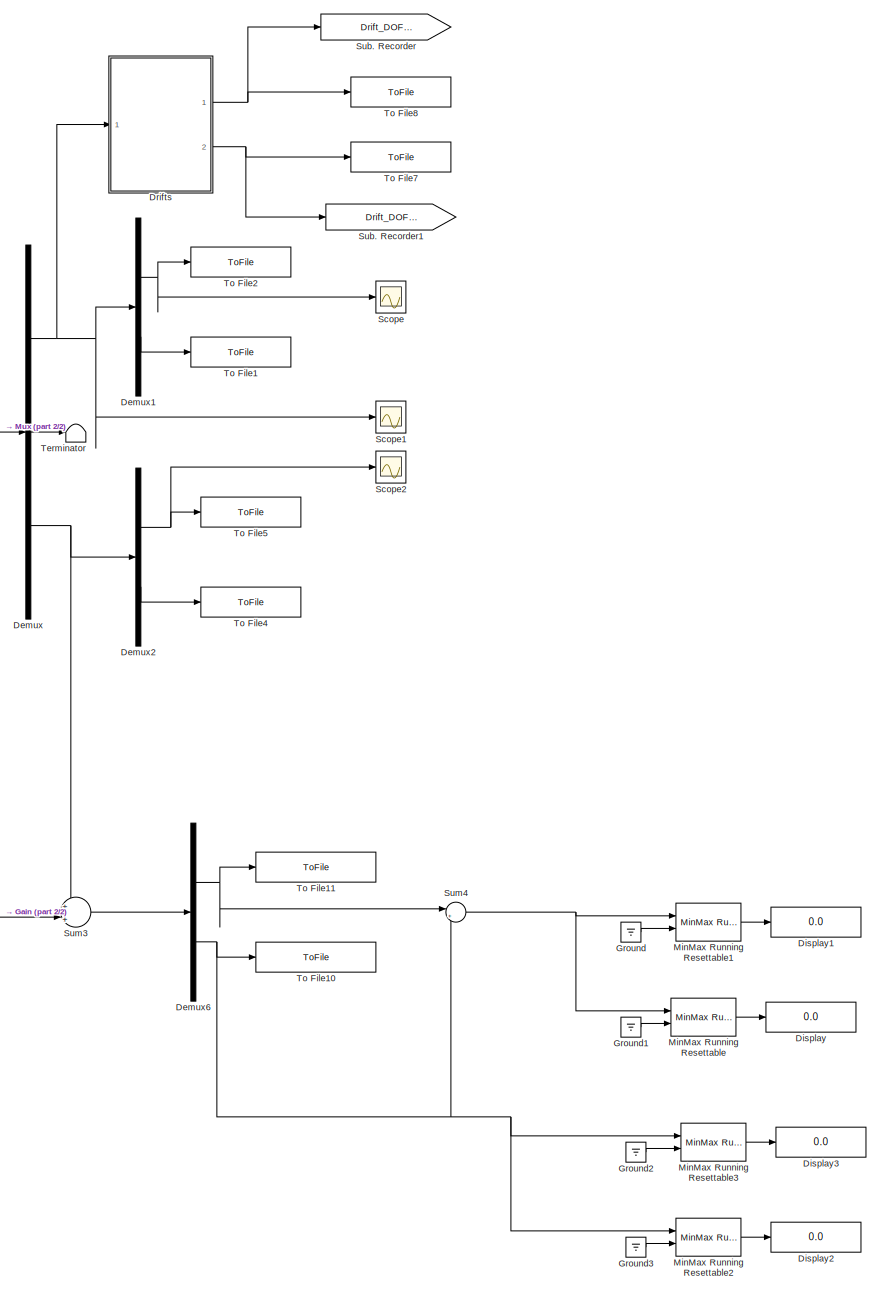
[diagram: Responses Recorder - part 1/2, right side, full height]
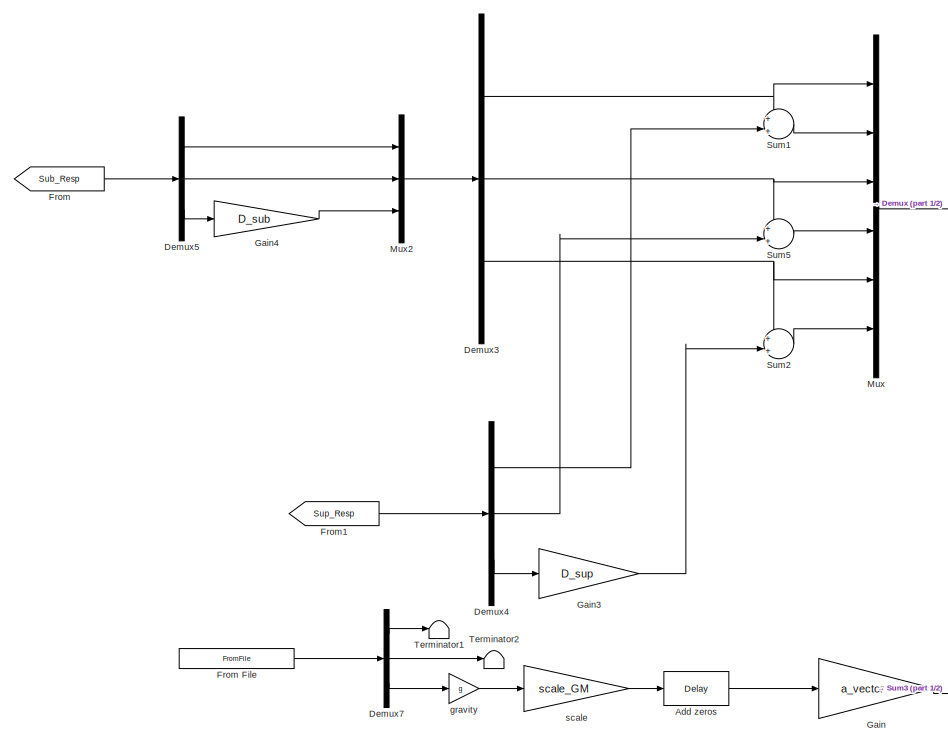
[diagram: Responses Recorder - part 2/2, middle left region]
BLOCK [SubSystem] Responses Recorder
  Ports = []
  RequestExecContextInheritance = off
  Variant = off
BLOCK [Delay] Responses Recorder/Add zeros
  DelayLength = onesec
  InitialCondition = 0
  InputPortMap = u0
  Ports = [1, 1]
BLOCK [Demux] Responses Recorder/Demux
  DisplayOption = bar
  Outputs = 3
  Ports = [1, 3]
BLOCK [Demux] Responses Recorder/Demux1
  DisplayOption = bar
  Outputs = 2
  Ports = [1, 2]
BLOCK [Demux] Responses Recorder/Demux2
  DisplayOption = bar
  Outputs = 2
  Ports = [1, 2]
BLOCK [Demux] Responses Recorder/Demux3
  DisplayOption = bar
  Outputs = 3
  Ports = [1, 3]
BLOCK [Demux] Responses Recorder/Demux4
  DisplayOption = bar
  Outputs = 3
  Ports = [1, 3]
BLOCK [Demux] Responses Recorder/Demux5
  DisplayOption = bar
  Outputs = 3
  Ports = [1, 3]
BLOCK [Demux] Responses Recorder/Demux6
  DisplayOption = bar
  Outputs = 2
  Ports = [1, 2]
BLOCK [Demux] Responses Recorder/Demux7
  DisplayOption = bar
  Outputs = 3
  Ports = [1, 3]
BLOCK [Display] Responses Recorder/Display
  Decimation = 1
  Ports = [1]
BLOCK [Display] Responses Recorder/Display1
  Decimation = 1
  Ports = [1]
BLOCK [Display] Responses Recorder/Display2
  Decimation = 1
  Ports = [1]
BLOCK [Display] Responses Recorder/Display3
  Decimation = 1
  Ports = [1]
BLOCK [SubSystem] Responses Recorder/Drifts
  Ports = [1, 2]
  RequestExecContextInheritance = off
  Variant = off
BLOCK [Demux] Responses Recorder/Drifts/Demux
  DisplayOption = bar
  Outputs = 2
  Ports = [1, 2]
BLOCK [Outport] Responses Recorder/Drifts/Drift DOF 1
  IconDisplay = Port number
BLOCK [Outport] Responses Recorder/Drifts/Drift DOF 2
  IconDisplay = Port number
  Port = 2
BLOCK [Inport] Responses Recorder/Drifts/In1
  IconDisplay = Port number
BLOCK [Sum] Responses Recorder/Drifts/Sum5
  IconShape = round
  InputSameDT = off
  Inputs = -|+||
  OutDataTypeStr = Inherit: Inherit via internal rule
  Ports = [2, 1]
  SaturateOnIntegerOverflow = off
BLOCK [From] Responses Recorder/From
  GotoTag = Sub_Resp
  TagVisibility = global
BLOCK [FromFile] Responses Recorder/From File
  FileName = lo89_2048Hz_All.mat
  SampleTime = samplePeriod
BLOCK [From] Responses Recorder/From1
  GotoTag = Sup_Resp
  TagVisibility = global
BLOCK [Gain] Responses Recorder/Gain
  Gain = a_vector
  Multiplication = Matrix(K*u)
  OutDataTypeStr = Inherit: Inherit via internal rule
  ParamDataTypeStr = Inherit: Inherit via internal rule
  SaturateOnIntegerOverflow = off
BLOCK [Gain] Responses Recorder/Gain3
  Gain = D_sup
  Multiplication = Matrix(K*u) (u vector)
  OutDataTypeStr = Inherit: Inherit via internal rule
  ParamDataTypeStr = Inherit: Inherit via internal rule
  SaturateOnIntegerOverflow = off
BLOCK [Gain] Responses Recorder/Gain4
  Gain = D_sub
  Multiplication = Matrix(K*u) (u vector)
  OutDataTypeStr = Inherit: Inherit via internal rule
  ParamDataTypeStr = Inherit: Inherit via internal rule
  SaturateOnIntegerOverflow = off
BLOCK [Ground] Responses Recorder/Ground
BLOCK [Ground] Responses Recorder/Ground1
BLOCK [Ground] Responses Recorder/Ground2
BLOCK [Ground] Responses Recorder/Ground3
BLOCK [Reference] Responses Recorder/MinMax Running Resettable  REF=simulink/Math
Operations/MinMax
Running
Resettable
  Ports = [2, 1]
  SourceBlock = simulink/Math\nOperations/MinMax\nRunning\nResettable
  SourceType = MinMax Running Resettable
BLOCK [Reference] Responses Recorder/MinMax Running Resettable1  REF=simulink/Math
Operations/MinMax
Running
Resettable
  Ports = [2, 1]
  SourceBlock = simulink/Math\nOperations/MinMax\nRunning\nResettable
  SourceType = MinMax Running Resettable
BLOCK [Reference] Responses Recorder/MinMax Running Resettable2  REF=simulink/Math
Operations/MinMax
Running
Resettable
  Ports = [2, 1]
  SourceBlock = simulink/Math\nOperations/MinMax\nRunning\nResettable
  SourceType = MinMax Running Resettable
BLOCK [Reference] Responses Recorder/MinMax Running Resettable3  REF=simulink/Math
Operations/MinMax
Running
Resettable
  Ports = [2, 1]
  SourceBlock = simulink/Math\nOperations/MinMax\nRunning\nResettable
  SourceType = MinMax Running Resettable
BLOCK [Mux] Responses Recorder/Mux
  DisplayOption = bar
  Inputs = 6
  Ports = [6, 1]
BLOCK [Mux] Responses Recorder/Mux2
  DisplayOption = bar
  Inputs = 3
  Ports = [3, 1]
BLOCK [Scope] Responses Recorder/Scope
  Ports = [1]
  ScopeSpecificationString = Simulink.scopes.TimeScopeBlockCfg('CurrentConfiguration', extmgr.ConfigurationSet(extmgr.Configuration('Core','General UI',true),extmgr.Configuration('Core','Source UI',true),extmgr.Configuration('Sources','WiredSimulink',true,'DataLoggingVariableName','ScopeData1'),extmgr.Configuration('Visuals','Time Domain',true,'SerializedDisplays',{struct('MinYLimReal','-2.47336','MaxYLimReal','2.43077','YLab...<+1394ch>
BLOCK [Scope] Responses Recorder/Scope1
  Ports = [1]
  ScopeSpecificationString = Simulink.scopes.TimeScopeBlockCfg('CurrentConfiguration', extmgr.ConfigurationSet(extmgr.Configuration('Core','General UI',true),extmgr.Configuration('Core','Source UI',true),extmgr.Configuration('Sources','WiredSimulink',true,'DataLoggingVariableName','ScopeData1'),extmgr.Configuration('Visuals','Time Domain',true,'SerializedDisplays',{struct('MinYLimReal','-194.63355','MaxYLimReal','198.47317','...<+1435ch>
BLOCK [Scope] Responses Recorder/Scope2
  Ports = [1]
  ScopeSpecificationString = Simulink.scopes.TimeScopeBlockCfg('CurrentConfiguration', extmgr.ConfigurationSet(extmgr.Configuration('Core','General UI',true),extmgr.Configuration('Core','Source UI',true),extmgr.Configuration('Sources','WiredSimulink',true,'DataLoggingVariableName','ScopeData2','DataLoggingLimitDataPoints',true,'DataLoggingSaveFormat','Array','DataLoggingDecimation','1','DataLoggingDecimateData',true),extmgr.C...<+165ch>
BLOCK [Goto] Responses Recorder/Sub. Recorder
  GotoTag = Drift_DOF_1
  TagVisibility = global
BLOCK [Goto] Responses Recorder/Sub. Recorder1
  GotoTag = Drift_DOF_2
  TagVisibility = global
BLOCK [Sum] Responses Recorder/Sum1
  IconShape = round
  InputSameDT = off
  Inputs = +|+||
  OutDataTypeStr = Inherit: Inherit via internal rule
  Ports = [2, 1]
  SaturateOnIntegerOverflow = off
BLOCK [Sum] Responses Recorder/Sum2
  IconShape = round
  InputSameDT = off
  Inputs = +|+||
  OutDataTypeStr = Inherit: Inherit via internal rule
  Ports = [2, 1]
  SaturateOnIntegerOverflow = off
BLOCK [Sum] Responses Recorder/Sum3
  IconShape = round
  InputSameDT = off
  Inputs = +|+||
  OutDataTypeStr = Inherit: Inherit via internal rule
  Ports = [2, 1]
  SaturateOnIntegerOverflow = off
BLOCK [Sum] Responses Recorder/Sum4
  IconShape = round
  InputSameDT = off
  Inputs = |+-
  OutDataTypeStr = Inherit: Inherit via internal rule
  Ports = [2, 1]
  SaturateOnIntegerOverflow = off
BLOCK [Sum] Responses Recorder/Sum5
  IconShape = round
  InputSameDT = off
  Inputs = +|+||
  OutDataTypeStr = Inherit: Inherit via internal rule
  Ports = [2, 1]
  SaturateOnIntegerOverflow = off
BLOCK [Terminator] Responses Recorder/Terminator
BLOCK [Terminator] Responses Recorder/Terminator1
BLOCK [Terminator] Responses Recorder/Terminator2
BLOCK [ToFile] Responses Recorder/To File1
  Filename = Disp_DOF2.mat
  Ports = [1]
BLOCK [ToFile] Responses Recorder/To File10
  Filename = Abs_Accel_DOF2.mat
  Ports = [1]
BLOCK [ToFile] Responses Recorder/To File11
  Filename = Abs_Accel_DOF1.mat
  Ports = [1]
BLOCK [ToFile] Responses Recorder/To File2
  Filename = Disp_DOF1.mat
  Ports = [1]
BLOCK [ToFile] Responses Recorder/To File4
  Filename = Accel_DOF2.mat
  Ports = [1]
BLOCK [ToFile] Responses Recorder/To File5
  Filename = Accel_DOF1.mat
  Ports = [1]
BLOCK [ToFile] Responses Recorder/To File7
  Filename = Drift_DOF2.mat
  MatrixName = Drift_DOF2
  Ports = [1]
BLOCK [ToFile] Responses Recorder/To File8
  Filename = Drift_DOF1.mat
  MatrixName = Drift_DOF1
  Ports = [1]
BLOCK [Gain] Responses Recorder/gravity
  Gain = g
  OutDataTypeStr = Inherit: Inherit via internal rule
  ParamDataTypeStr = Inherit: Inherit via internal rule
  SaturateOnIntegerOverflow = off
BLOCK [Gain] Responses Recorder/scale
  Gain = scale_GM
  OutDataTypeStr = Inherit: Inherit via internal rule
  ParamDataTypeStr = Inherit: Inherit via internal rule
  SaturateOnIntegerOverflow = off
BLOCK [Reference] SC150 init  REF=xpcsystranlib/Shared
Memory/SC150 init 
  Ports = []
  SourceBlock = xpcsystranlib/Shared\nMemory/SC150 init
  SourceType = SC150 Init
BLOCK [Reference] Scope   REF=slrtlib/Displays and
Logging/Scope 
  Ports = [1]
  SourceBlock = slrtlib/Displays and\nLogging/Scope
  SourceType = xpcscopeblock
BLOCK [Reference] Scope (xPC) 1  REF=slrtlib/Displays and
Logging/Scope 
  Ports = [1]
  SourceBlock = slrtlib/Displays and\nLogging/Scope
  SourceType = xpcscopeblock
BLOCK [Reference] Scope (xPC) 2  REF=slrtlib/Displays and
Logging/Scope 
  Ports = [1]
  SourceBlock = slrtlib/Displays and\nLogging/Scope
  SourceType = xpcscopeblock
BLOCK [Reference] Scope (xPC) 3  REF=slrtlib/Displays and
Logging/Scope 
  Ports = [1]
  SourceBlock = slrtlib/Displays and\nLogging/Scope
  SourceType = xpcscopeblock
BLOCK [Reference] Scope (xPC) 4  REF=slrtlib/Displays and
Logging/Scope 
  Ports = [1]
  SourceBlock = slrtlib/Displays and\nLogging/Scope
  SourceType = xpcscopeblock
BLOCK [Reference] Scope (xPC) 5  REF=slrtlib/Displays and
Logging/Scope 
  Ports = [1]
  SourceBlock = slrtlib/Displays and\nLogging/Scope
  SourceType = xpcscopeblock
BLOCK [Reference] Scope (xPC) 6  REF=slrtlib/Displays and
Logging/Scope 
  Ports = [1]
  SourceBlock = slrtlib/Displays and\nLogging/Scope
  SourceType = xpcscopeblock
BLOCK [Reference] Scope 1  REF=slrtlib/Displays and
Logging/Scope 
  Ports = [1]
  SourceBlock = slrtlib/Displays and\nLogging/Scope
  SourceType = xpcscopeblock
BLOCK [Goto] Sub. Recorder
  GotoTag = Sub_Resp
  TagVisibility = global
BLOCK [Sum] Sum
  IconShape = round
  InputSameDT = off
  Inputs = |++
  OutDataTypeStr = Inherit: Inherit via internal rule
  Ports = [2, 1]
  SaturateOnIntegerOverflow = off
BLOCK [Sum] Sum1
  IconShape = round
  InputSameDT = off
  Inputs = |++
  OutDataTypeStr = Inherit: Inherit via internal rule
  Ports = [2, 1]
  SaturateOnIntegerOverflow = off
BLOCK [Goto] Sup. Recorder
  GotoTag = Sup_Resp
  TagVisibility = global
BLOCK [Terminator] Terminator
BLOCK [Constant] ctl modes
  Value = zeros(nAct, 1)
BLOCK [Constant] dig outs
  OutDataTypeStr = uint32
  Value = zeros(nDout, 1)
BLOCK [Constant] displ fbks
  Value = zeros(nAct, 1)
BLOCK [Constant] dpforce fbks
  Value = zeros(nAct, 1)
BLOCK [Constant] force cmds
  Value = zeros(nAct, 1)
BLOCK [Constant] force fbks
  Value = zeros(nAct, 1)
BLOCK [Gain] gravity
  Gain = g
  OutDataTypeStr = Inherit: Inherit via internal rule
  ParamDataTypeStr = Inherit: Inherit via internal rule
  SaturateOnIntegerOverflow = off
BLOCK [SubSystem] input from LHP
  Ports = [0, 6]
  RequestExecContextInheritance = off
  Variant = off
BLOCK [Reference] input from LHP/SC150 read  REF=xpcsystranlib/Shared
Memory/SC150 read 
  Ports = [0, 1]
  SourceBlock = xpcsystranlib/Shared\nMemory/SC150 read
  SourceType = SC150 Read
BLOCK [Reference] input from LHP/SC150 unpack  REF=slrtlib/Shared
Memory/Shared Memory Unpack 
  Ports = [1, 6]
  SourceBlock = slrtlib/Shared\nMemory/Shared Memory Unpack
  SourceType = Shared Memory Partition Unpacking
BLOCK [Outport] input from LHP/accel fbk
  IconDisplay = Port number
  Port = 5
BLOCK [Outport] input from LHP/displ fbk
  IconDisplay = Port number
  Port = 3
BLOCK [Outport] input from LHP/force fbk
  IconDisplay = Port number
  Port = 6
BLOCK [Outport] input from LHP/master span
  IconDisplay = Port number
BLOCK [Outport] input from LHP/ref
  IconDisplay = Port number
  Port = 2
BLOCK [DataTypeConversion] input from LHP/typeConv1
  OutDataTypeStr = double
BLOCK [DataTypeConversion] input from LHP/typeConv2
  OutDataTypeStr = double
BLOCK [DataTypeConversion] input from LHP/typeConv3
  OutDataTypeStr = double
BLOCK [DataTypeConversion] input from LHP/typeConv4
  OutDataTypeStr = double
BLOCK [DataTypeConversion] input from LHP/typeConv5
  OutDataTypeStr = double
BLOCK [DataTypeConversion] input from LHP/typeConv6
  OutDataTypeStr = double
BLOCK [Outport] input from LHP/veloc fbk
  IconDisplay = Port number
  Port = 4
BLOCK [SubSystem] input from STS
  Ports = [0, 9]
  RequestExecContextInheritance = off
  Variant = off
BLOCK [Reference] input from STS/SC150 read  REF=xpcsystranlib/Shared
Memory/SC150 read 
  Ports = [0, 1]
  SourceBlock = xpcsystranlib/Shared\nMemory/SC150 read
  SourceType = SC150 Read
BLOCK [Reference] input from STS/SC150 unpack  REF=slrtlib/Shared
Memory/Shared Memory Unpack 
  Ports = [1, 9]
  SourceBlock = slrtlib/Shared\nMemory/Shared Memory Unpack
  SourceType = Shared Memory Partition Unpacking
BLOCK [Outport] input from STS/ctl modes
  IconDisplay = Port number
  Port = 2
BLOCK [Outport] input from STS/dig inps
  IconDisplay = Port number
  Port = 9
BLOCK [Outport] input from STS/displ cmds
  IconDisplay = Port number
  Port = 3
BLOCK [Outport] input from STS/displ fbks
  IconDisplay = Port number
  Port = 5
BLOCK [Outport] input from STS/dpforce fbks
  IconDisplay = Port number
  Port = 7
BLOCK [Outport] input from STS/force cmds
  IconDisplay = Port number
  Port = 4
BLOCK [Outport] input from STS/force fbks
  IconDisplay = Port number
  Port = 6
BLOCK [Outport] input from STS/master span
  IconDisplay = Port number
BLOCK [DataTypeConversion] input from STS/typeConv1
  OutDataTypeStr = double
BLOCK [DataTypeConversion] input from STS/typeConv2
  OutDataTypeStr = uint32
BLOCK [DataTypeConversion] input from STS/typeConv3
  OutDataTypeStr = double
BLOCK [DataTypeConversion] input from STS/typeConv4
  OutDataTypeStr = double
BLOCK [DataTypeConversion] input from STS/typeConv5
  OutDataTypeStr = double
BLOCK [DataTypeConversion] input from STS/typeConv6
  OutDataTypeStr = double
BLOCK [DataTypeConversion] input from STS/typeConv7
  OutDataTypeStr = double
BLOCK [DataTypeConversion] input from STS/typeConv8
  OutDataTypeStr = double
BLOCK [DataTypeConversion] input from STS/typeConv9
  OutDataTypeStr = uint32
BLOCK [Outport] input from STS/valve cmds
  IconDisplay = Port number
  Port = 8
BLOCK [Constant] master span
  Value = 0
BLOCK [Constant] master span1
  Value = 0
BLOCK [SubSystem] output to LHP
  Ports = [2]
  RequestExecContextInheritance = off
  Variant = off
BLOCK [Reference] output to LHP/SC150 pack  REF=slrtlib/Shared
Memory/Shared Memory Pack 
  Ports = [2, 1]
  SourceBlock = slrtlib/Shared\nMemory/Shared Memory Pack
  SourceType = Shared-memory Pack
BLOCK [Reference] output to LHP/SC150 write  REF=xpcsystranlib/Shared
Memory/SC150 write 
  Ports = [1]
  SourceBlock = xpcsystranlib/Shared\nMemory/SC150 write
  SourceType = SC150 Write
BLOCK [Inport] output to LHP/master span
  IconDisplay = Port number
BLOCK [Inport] output to LHP/ref
  IconDisplay = Port number
  Port = 2
BLOCK [DataTypeConversion] output to LHP/typeConv1
  OutDataTypeStr = single
BLOCK [DataTypeConversion] output to LHP/typeConv2
  OutDataTypeStr = single
BLOCK [SubSystem] output to STS
  Ports = [8]
  RequestExecContextInheritance = off
  Variant = off
BLOCK [Reference] output to STS/SC150 pack  REF=slrtlib/Shared
Memory/Shared Memory Pack 
  Ports = [8, 1]
  SourceBlock = slrtlib/Shared\nMemory/Shared Memory Pack
  SourceType = Shared-memory Pack
BLOCK [Reference] output to STS/SC150 write  REF=xpcsystranlib/Shared
Memory/SC150 write 
  Ports = [1]
  SourceBlock = xpcsystranlib/Shared\nMemory/SC150 write
  SourceType = SC150 Write
BLOCK [Inport] output to STS/ctl modes
  IconDisplay = Port number
  Port = 2
BLOCK [Inport] output to STS/dig outs
  IconDisplay = Port number
  Port = 8
BLOCK [Inport] output to STS/displ cmds
  IconDisplay = Port number
  Port = 3
BLOCK [Inport] output to STS/displ fbks
  IconDisplay = Port number
  Port = 5
BLOCK [Inport] output to STS/dpforce fbks
  IconDisplay = Port number
  Port = 7
BLOCK [Inport] output to STS/force cmds
  IconDisplay = Port number
  Port = 4
BLOCK [Inport] output to STS/force fbks
  IconDisplay = Port number
  Port = 6
BLOCK [Inport] output to STS/master span
  IconDisplay = Port number
BLOCK [DataTypeConversion] output to STS/typeConv1
  OutDataTypeStr = single
BLOCK [DataTypeConversion] output to STS/typeConv2
  OutDataTypeStr = uint32
BLOCK [DataTypeConversion] output to STS/typeConv3
  OutDataTypeStr = single
BLOCK [DataTypeConversion] output to STS/typeConv4
  OutDataTypeStr = single
BLOCK [DataTypeConversion] output to STS/typeConv5
  OutDataTypeStr = single
BLOCK [DataTypeConversion] output to STS/typeConv6
  OutDataTypeStr = single
BLOCK [DataTypeConversion] output to STS/typeConv7
  OutDataTypeStr = single
BLOCK [DataTypeConversion] output to STS/typeConv8
  OutDataTypeStr = uint32
BLOCK [Gain] scale
  Gain = scale_GM
  OutDataTypeStr = Inherit: Inherit via internal rule
  ParamDataTypeStr = Inherit: Inherit via internal rule
  SaturateOnIntegerOverflow = off
BLOCK [SubSystem] sine fg #1
  Ports = [0, 1]
  RequestExecContextInheritance = off
  Variant = off
BLOCK [Product] sine fg #1/Product
  Ports = [2, 1]
  RndMeth = Floor
BLOCK [DiscreteIntegrator] sine fg #1/integrator
  ICPrevOutput = DiscIntNeverNeededParam
  ICPrevScaledInput = DiscIntNeverNeededParam
  LimitOutput = on
  LowerSaturationLimit = 0
  Ports = [1, 1]
  SampleTime = -1
  UpperSaturationLimit = 1
BLOCK [Outport] sine fg #1/out
  IconDisplay = Port number
BLOCK [Sin] sine fg #1/sine
  Amplitude = ampl
  Frequency = 2 * pi * freq
  Ports = [0, 1]
  SampleTime = samplePeriod
BLOCK [Constant] sine fg #1/span rate
  Value = 1/spanInterval
BLOCK [SubSystem] sine fg #2
  Ports = [0, 1]
  RequestExecContextInheritance = off
  Variant = off
BLOCK [Product] sine fg #2/Product
  Ports = [2, 1]
  RndMeth = Floor
BLOCK [DiscreteIntegrator] sine fg #2/integrator
  ICPrevOutput = DiscIntNeverNeededParam
  ICPrevScaledInput = DiscIntNeverNeededParam
  LimitOutput = on
  LowerSaturationLimit = 0
  Ports = [1, 1]
  SampleTime = -1
  UpperSaturationLimit = 1
BLOCK [Outport] sine fg #2/out
  IconDisplay = Port number
BLOCK [Sin] sine fg #2/sine
  Amplitude = ampl
  Frequency = 2 * pi * freq
  Ports = [0, 1]
  SampleTime = samplePeriod
BLOCK [Constant] sine fg #2/span rate
  Value = 1/spanInterval
BLOCK [SubSystem] sine fg #3
  Ports = [0, 1]
  RequestExecContextInheritance = off
  Variant = off
BLOCK [Product] sine fg #3/Product
  Ports = [2, 1]
  RndMeth = Floor
BLOCK [DiscreteIntegrator] sine fg #3/integrator
  ICPrevOutput = DiscIntNeverNeededParam
  ICPrevScaledInput = DiscIntNeverNeededParam
  LimitOutput = on
  LowerSaturationLimit = 0
  Ports = [1, 1]
  SampleTime = -1
  UpperSaturationLimit = 1
BLOCK [Outport] sine fg #3/out
  IconDisplay = Port number
BLOCK [Sin] sine fg #3/sine
  Amplitude = ampl
  Frequency = 2 * pi * freq
  Ports = [0, 1]
  SampleTime = samplePeriod
BLOCK [Constant] sine fg #3/span rate
  Value = 1/spanInterval
BLOCK [SubSystem] sine fg #4
  Ports = [0, 1]
  RequestExecContextInheritance = off
  Variant = off
BLOCK [Product] sine fg #4/Product
  Ports = [2, 1]
  RndMeth = Floor
BLOCK [DiscreteIntegrator] sine fg #4/integrator
  ICPrevOutput = DiscIntNeverNeededParam
  ICPrevScaledInput = DiscIntNeverNeededParam
  LimitOutput = on
  LowerSaturationLimit = 0
  Ports = [1, 1]
  SampleTime = -1
  UpperSaturationLimit = 1
BLOCK [Outport] sine fg #4/out
  IconDisplay = Port number
BLOCK [Sin] sine fg #4/sine
  Amplitude = ampl
  Frequency = 2 * pi * freq
  Ports = [0, 1]
  SampleTime = samplePeriod
BLOCK [Constant] sine fg #4/span rate
  Value = 1/spanInterval
BLOCK [Terminator] term15
BLOCK [Terminator] term4
BLOCK [Terminator] term5
BLOCK [Terminator] term6
BLOCK [Terminator] term7
BLOCK [Terminator] term8
BLOCK [Terminator] term9
ANNOTATION Experimental Superstructure EOM/Material/Hysteretic w//o Isotropic Hardening1: Like plastic displacement
ANNOTATION Numerical Substructure EOM/Material/Hysteretic w//o Isotropic Hardening1: Like plastic displacement
LINE Add zeros:1 -> Demux:1
LINE Clock:1 -> Compare To Constant:1
LINE Compare To Constant:1 -> Enabled Subsystem1:enable
LINE Demux:1 -> Sum1:2
LINE Demux:2 -> term15:1
LINE Demux:3 -> gravity:1
LINE Enabled Subsystem1/sine fg #5/Product:1 -> Enabled Subsystem1/sine fg #5/out:1
LINE Enabled Subsystem1/sine fg #5/integrator:1 -> Enabled Subsystem1/sine fg #5/Product:2
LINE Enabled Subsystem1/sine fg #5/sine:1 -> Enabled Subsystem1/sine fg #5/Product:1
LINE Enabled Subsystem1/sine fg #5/span rate:1 -> Enabled Subsystem1/sine fg #5/integrator:1
LINE Enabled Subsystem1/sine fg #5:1 -> Enabled Subsystem1/Out1:1
LINE Enabled Subsystem1:1 -> Terminator:1
LINE Experimental Superstructure EOM/Delay1:1 -> Experimental Superstructure EOM/Subsystem:3
LINE Experimental Superstructure EOM/Demux1:1 -> Experimental Superstructure EOM/Terminator2:1
LINE Experimental Superstructure EOM/Demux1:2 -> Experimental Superstructure EOM/Gain:1
LINE Experimental Superstructure EOM/Demux1:3 -> Experimental Superstructure EOM/Terminator3:1
LINE Experimental Superstructure EOM/Demux:1 -> Experimental Superstructure EOM/Material:1
LINE Experimental Superstructure EOM/Demux:2 -> Experimental Superstructure EOM/Terminator1:1
LINE Experimental Superstructure EOM/Demux:3 -> Experimental Superstructure EOM/Terminator:1
LINE Experimental Superstructure EOM/Excitation Sup.:1 -> Experimental Superstructure EOM/Gain2:1
LINE Experimental Superstructure EOM/Gain2:1 -> Experimental Superstructure EOM/Subsystem:1
LINE Experimental Superstructure EOM/Gain:1 -> Experimental Superstructure EOM/Sum:1
NET Experimental Superstructure EOM/Material/Disp:1 -> Experimental Superstructure EOM/Material/DOF 2 (Experimental):1, Experimental Superstructure EOM/Material/Gain:1, Experimental Superstructure EOM/Material/Hysteretic w//o Isotropic Hardening1:1, Experimental Superstructure EOM/Material/MinMax Running Resettable2:1, Experimental Superstructure EOM/Material/MinMax Running Resettable3:1, Experimental Superstructure EOM/Material/Scope1:1
LINE Experimental Superstructure EOM/Material/Gain:1 -> Experimental Superstructure EOM/Material/Manual Switch:2
LINE Experimental Superstructure EOM/Material/Ground1:1 -> Experimental Superstructure EOM/Material/MinMax Running Resettable:2
LINE Experimental Superstructure EOM/Material/Ground2:1 -> Experimental Superstructure EOM/Material/MinMax Running Resettable3:2
LINE Experimental Superstructure EOM/Material/Ground3:1 -> Experimental Superstructure EOM/Material/MinMax Running Resettable2:2
LINE Experimental Superstructure EOM/Material/Ground:1 -> Experimental Superstructure EOM/Material/MinMax Running Resettable1:2
LINE Experimental Superstructure EOM/Material/Hysteresis Recorder 1/Restoring Force:1 -> Experimental Superstructure EOM/Material/Hysteresis Recorder 1/To File2:1
LINE Experimental Superstructure EOM/Material/Hysteretic w//o Isotropic Hardening1/Abs:1 -> Experimental Superstructure EOM/Material/Hysteretic w//o Isotropic Hardening1/Sum2:2
NET Experimental Superstructure EOM/Material/Hysteretic w//o Isotropic Hardening1/Constant:1 -> Experimental Superstructure EOM/Material/Hysteretic w//o Isotropic Hardening1/Product:1, Experimental Superstructure EOM/Material/Hysteretic w//o Isotropic Hardening1/Sum2:1
NET Experimental Superstructure EOM/Material/Hysteretic w//o Isotropic Hardening1/Disp:1 -> Experimental Superstructure EOM/Material/Hysteretic w//o Isotropic Hardening1/Elastic_Force:1, Experimental Superstructure EOM/Material/Hysteretic w//o Isotropic Hardening1/Sum1:1
LINE Experimental Superstructure EOM/Material/Hysteretic w//o Isotropic Hardening1/Elastic_Force:1 -> Experimental Superstructure EOM/Material/Hysteretic w//o Isotropic Hardening1/Sum:1
LINE Experimental Superstructure EOM/Material/Hysteretic w//o Isotropic Hardening1/Plastic_Stiff1:1 -> Experimental Superstructure EOM/Material/Hysteretic w//o Isotropic Hardening1/Product1:2
NET Experimental Superstructure EOM/Material/Hysteretic w//o Isotropic Hardening1/Plastic_Stiff:1 -> Experimental Superstructure EOM/Material/Hysteretic w//o Isotropic Hardening1/Abs:1, Experimental Superstructure EOM/Material/Hysteretic w//o Isotropic Hardening1/Sign:1, Experimental Superstructure EOM/Material/Hysteretic w//o Isotropic Hardening1/Switch:3
LINE Experimental Superstructure EOM/Material/Hysteretic w//o Isotropic Hardening1/Product1:1 -> Experimental Superstructure EOM/Material/Hysteretic w//o Isotropic Hardening1/Sum3:1
LINE Experimental Superstructure EOM/Material/Hysteretic w//o Isotropic Hardening1/Product:1 -> Experimental Superstructure EOM/Material/Hysteretic w//o Isotropic Hardening1/Switch:1
NET Experimental Superstructure EOM/Material/Hysteretic w//o Isotropic Hardening1/Sign:1 -> Experimental Superstructure EOM/Material/Hysteretic w//o Isotropic Hardening1/Product1:1, Experimental Superstructure EOM/Material/Hysteretic w//o Isotropic Hardening1/Product:2
LINE Experimental Superstructure EOM/Material/Hysteretic w//o Isotropic Hardening1/Sum1:1 -> Experimental Superstructure EOM/Material/Hysteretic w//o Isotropic Hardening1/Plastic_Stiff:1
NET Experimental Superstructure EOM/Material/Hysteretic w//o Isotropic Hardening1/Sum2:1 -> Experimental Superstructure EOM/Material/Hysteretic w//o Isotropic Hardening1/Plastic_Stiff1:1, Experimental Superstructure EOM/Material/Hysteretic w//o Isotropic Hardening1/Switch1:2, Experimental Superstructure EOM/Material/Hysteretic w//o Isotropic Hardening1/Switch:2
LINE Experimental Superstructure EOM/Material/Hysteretic w//o Isotropic Hardening1/Sum3:1 -> Experimental Superstructure EOM/Material/Hysteretic w//o Isotropic Hardening1/Switch1:1
LINE Experimental Superstructure EOM/Material/Hysteretic w//o Isotropic Hardening1/Sum:1 -> Experimental Superstructure EOM/Material/Hysteretic w//o Isotropic Hardening1/Force:1
LINE Experimental Superstructure EOM/Material/Hysteretic w//o Isotropic Hardening1/Switch1:1 -> Experimental Superstructure EOM/Material/Hysteretic w//o Isotropic Hardening1/Up:1
LINE Experimental Superstructure EOM/Material/Hysteretic w//o Isotropic Hardening1/Switch:1 -> Experimental Superstructure EOM/Material/Hysteretic w//o Isotropic Hardening1/Sum:2
NET Experimental Superstructure EOM/Material/Hysteretic w//o Isotropic Hardening1/Unit Delay:1 -> Experimental Superstructure EOM/Material/Hysteretic w//o Isotropic Hardening1/Sum1:2, Experimental Superstructure EOM/Material/Hysteretic w//o Isotropic Hardening1/Sum3:2, Experimental Superstructure EOM/Material/Hysteretic w//o Isotropic Hardening1/Switch1:3
LINE Experimental Superstructure EOM/Material/Hysteretic w//o Isotropic Hardening1/Upi:1 -> Experimental Superstructure EOM/Material/Hysteretic w//o Isotropic Hardening1/Unit Delay:1
LINE Experimental Superstructure EOM/Material/Hysteretic w//o Isotropic Hardening1:1 -> Experimental Superstructure EOM/Material/Manual Switch:1
LINE Experimental Superstructure EOM/Material/Hysteretic w//o Isotropic Hardening1:2 -> Experimental Superstructure EOM/Material/Hysteretic w//o Isotropic Hardening1:2
NET Experimental Superstructure EOM/Material/Manual Switch:1 -> Experimental Superstructure EOM/Material/DOF 2 (Experimental):2, Experimental Superstructure EOM/Material/Force:1, Experimental Superstructure EOM/Material/Hysteresis Recorder 1:1, Experimental Superstructure EOM/Material/MinMax Running Resettable1:1, Experimental Superstructure EOM/Material/MinMax Running Resettable:1, Experimental Superstructure EOM/Material/Scope:1
LINE Experimental Superstructure EOM/Material/MinMax Running Resettable1:1 -> Experimental Superstructure EOM/Material/Display1:1
LINE Experimental Superstructure EOM/Material/MinMax Running Resettable2:1 -> Experimental Superstructure EOM/Material/Display2:1
LINE Experimental Superstructure EOM/Material/MinMax Running Resettable3:1 -> Experimental Superstructure EOM/Material/Display3:1
LINE Experimental Superstructure EOM/Material/MinMax Running Resettable:1 -> Experimental Superstructure EOM/Material/Display:1
NET Experimental Superstructure EOM/Material:1 -> Experimental Superstructure EOM/Subsystem:2, Experimental Superstructure EOM/Sum:2
LINE Experimental Superstructure EOM/Subsystem/Delay1:1 -> Experimental Superstructure EOM/Subsystem/Gain3:1
LINE Experimental Superstructure EOM/Subsystem/Delay:1 -> Experimental Superstructure EOM/Subsystem/Gain1:1
NET Experimental Superstructure EOM/Subsystem/Excitation Force:1 -> Experimental Superstructure EOM/Subsystem/Delay:1, Experimental Superstructure EOM/Subsystem/Gain:1
LINE Experimental Superstructure EOM/Subsystem/Gain1:1 -> Experimental Superstructure EOM/Subsystem/Sum:2
LINE Experimental Superstructure EOM/Subsystem/Gain2:1 -> Experimental Superstructure EOM/Subsystem/Sum1:1
LINE Experimental Superstructure EOM/Subsystem/Gain3:1 -> Experimental Superstructure EOM/Subsystem/Sum1:2
LINE Experimental Superstructure EOM/Subsystem/Gain:1 -> Experimental Superstructure EOM/Subsystem/Sum:1
LINE Experimental Superstructure EOM/Subsystem/Mux:1 -> Experimental Superstructure EOM/Subsystem/Responses i+1:1
NET Experimental Superstructure EOM/Subsystem/Responses i:1 -> Experimental Superstructure EOM/Subsystem/Subsystem1:1, Experimental Superstructure EOM/Subsystem/Subsystem2:1, Experimental Superstructure EOM/Subsystem/Subsystem:1
NET Experimental Superstructure EOM/Subsystem/Restoring A//E:1 -> Experimental Superstructure EOM/Subsystem/Delay1:1, Experimental Superstructure EOM/Subsystem/Gain2:1
LINE Experimental Superstructure EOM/Subsystem/Subsystem/Demux:1 -> Experimental Superstructure EOM/Subsystem/Subsystem/Sum1:1
LINE Experimental Superstructure EOM/Subsystem/Subsystem/Demux:2 -> Experimental Superstructure EOM/Subsystem/Subsystem/Gain:1
LINE Experimental Superstructure EOM/Subsystem/Subsystem/Demux:3 -> Experimental Superstructure EOM/Subsystem/Subsystem/Gain1:1
LINE Experimental Superstructure EOM/Subsystem/Subsystem/Gain1:1 -> Experimental Superstructure EOM/Subsystem/Subsystem/Sum1:3
LINE Experimental Superstructure EOM/Subsystem/Subsystem/Gain:1 -> Experimental Superstructure EOM/Subsystem/Subsystem/Sum1:2
LINE Experimental Superstructure EOM/Subsystem/Subsystem/In:1 -> Experimental Superstructure EOM/Subsystem/Subsystem/Demux:1
LINE Experimental Superstructure EOM/Subsystem/Subsystem/Sum1:1 -> Experimental Superstructure EOM/Subsystem/Subsystem/X i+1:1
LINE Experimental Superstructure EOM/Subsystem/Subsystem1/Demux:1 -> Experimental Superstructure EOM/Subsystem/Subsystem1/Terminator:1
LINE Experimental Superstructure EOM/Subsystem/Subsystem1/Demux:2 -> Experimental Superstructure EOM/Subsystem/Subsystem1/Sum:1
LINE Experimental Superstructure EOM/Subsystem/Subsystem1/Demux:3 -> Experimental Superstructure EOM/Subsystem/Subsystem1/Sum:2
LINE Experimental Superstructure EOM/Subsystem/Subsystem1/In:1 -> Experimental Superstructure EOM/Subsystem/Subsystem1/Demux:1
LINE Experimental Superstructure EOM/Subsystem/Subsystem1/Sum:1 -> Experimental Superstructure EOM/Subsystem/Subsystem1/X' i+1:1
LINE Experimental Superstructure EOM/Subsystem/Subsystem1:1 -> Experimental Superstructure EOM/Subsystem/Mux:2
LINE Experimental Superstructure EOM/Subsystem/Subsystem2/Demux:1 -> Experimental Superstructure EOM/Subsystem/Subsystem2/Terminator:1
LINE Experimental Superstructure EOM/Subsystem/Subsystem2/Demux:2 -> Experimental Superstructure EOM/Subsystem/Subsystem2/Sum1:1
NET Experimental Superstructure EOM/Subsystem/Subsystem2/Demux:3 -> Experimental Superstructure EOM/Subsystem/Subsystem2/Gain1:1, Experimental Superstructure EOM/Subsystem/Subsystem2/Gain:1
LINE Experimental Superstructure EOM/Subsystem/Subsystem2/F i+1-alpha_f:1 -> Experimental Superstructure EOM/Subsystem/Subsystem2/Sum:1
LINE Experimental Superstructure EOM/Subsystem/Subsystem2/Gain1:1 -> Experimental Superstructure EOM/Subsystem/Subsystem2/Sum1:2
LINE Experimental Superstructure EOM/Subsystem/Subsystem2/Gain2:1 -> Experimental Superstructure EOM/Subsystem/Subsystem2/Sum:2
LINE Experimental Superstructure EOM/Subsystem/Subsystem2/Gain3:1 -> Experimental Superstructure EOM/Subsystem/Subsystem2/X'hat i+1:1
LINE Experimental Superstructure EOM/Subsystem/Subsystem2/Gain:1 -> Experimental Superstructure EOM/Subsystem/Subsystem2/Sum:4
LINE Experimental Superstructure EOM/Subsystem/Subsystem2/In:1 -> Experimental Superstructure EOM/Subsystem/Subsystem2/Demux:1
LINE Experimental Superstructure EOM/Subsystem/Subsystem2/R i+1-alpha_f:1 -> Experimental Superstructure EOM/Subsystem/Subsystem2/Sum:3
LINE Experimental Superstructure EOM/Subsystem/Subsystem2/Sum1:1 -> Experimental Superstructure EOM/Subsystem/Subsystem2/Gain2:1
LINE Experimental Superstructure EOM/Subsystem/Subsystem2/Sum:1 -> Experimental Superstructure EOM/Subsystem/Subsystem2/Gain3:1
LINE Experimental Superstructure EOM/Subsystem/Subsystem2:1 -> Experimental Superstructure EOM/Subsystem/Mux:3
LINE Experimental Superstructure EOM/Subsystem/Subsystem:1 -> Experimental Superstructure EOM/Subsystem/Mux:1
LINE Experimental Superstructure EOM/Subsystem/Sum1:1 -> Experimental Superstructure EOM/Subsystem/Subsystem2:3
LINE Experimental Superstructure EOM/Subsystem/Sum:1 -> Experimental Superstructure EOM/Subsystem/Subsystem2:2
NET Experimental Superstructure EOM/Subsystem:1 -> Experimental Superstructure EOM/Delay1:1, Experimental Superstructure EOM/Demux1:1, Experimental Superstructure EOM/Demux:1, Experimental Superstructure EOM/Responses Sup.:1
LINE Experimental Superstructure EOM/Sum:1 -> Experimental Superstructure EOM/Resisting Force Sup.:1
LINE Experimental Superstructure EOM:1 -> Sup. Recorder:1
NET Experimental Superstructure EOM:2 -> Manual Switch:1, Manual Switch:2, Out4:1
LINE Filter2/In1:1 -> Filter2/MovingAverage Filter2:1
LINE Filter2/MovingAverage Filter2:1 -> Filter2/Out1:1
LINE Filter2:1 -> Offset:1
LINE From File:1 -> scale:1
LINE From1:1 -> Out3:1
NET From2:1 -> Out1:1, Scope (xPC) 3:1
LINE From3:1 -> Sum1:1
LINE From:1 -> Out2:1
LINE Gain1:1 -> Sum:2
LINE Gain:1 -> Out5:1
LINE Manual Switch:1 -> Sum:1
LINE Mux3:1 -> output to STS:3
LINE Mux:1 -> Scope (xPC) 1:1
LINE Numerical Substructure EOM/Delay1:1 -> Numerical Substructure EOM/Subsystem:4
LINE Numerical Substructure EOM/Demux1:1 -> Numerical Substructure EOM/Goto2:1
LINE Numerical Substructure EOM/Demux1:2 -> Numerical Substructure EOM/Terminator2:1
LINE Numerical Substructure EOM/Demux1:3 -> Numerical Substructure EOM/Gain1:1
LINE Numerical Substructure EOM/Demux:1 -> Numerical Substructure EOM/Material:1
LINE Numerical Substructure EOM/Demux:2 -> Numerical Substructure EOM/Terminator:1
LINE Numerical Substructure EOM/Demux:3 -> Numerical Substructure EOM/Terminator1:1
NET Numerical Substructure EOM/Excitation Sub.:1 -> Numerical Substructure EOM/Gain:1, Numerical Substructure EOM/Sum1:1
LINE Numerical Substructure EOM/From1:1 -> Numerical Substructure EOM/Subsystem:3
LINE Numerical Substructure EOM/From:1 -> Numerical Substructure EOM/Excitation Sup.:1
LINE Numerical Substructure EOM/Gain1:1 -> Numerical Substructure EOM/Sum1:2
NET Numerical Substructure EOM/Gain:1 -> Numerical Substructure EOM/Scope1:1, Numerical Substructure EOM/Subsystem:1
NET Numerical Substructure EOM/Material/Disp:1 -> Numerical Substructure EOM/Material/DOF 1 (Numerical):1, Numerical Substructure EOM/Material/Gain:1, Numerical Substructure EOM/Material/Hysteretic w//o Isotropic Hardening1:1, Numerical Substructure EOM/Material/MinMax Running Resettable2:1, Numerical Substructure EOM/Material/MinMax Running Resettable3:1, Numerical Substructure EOM/Material/Scope1:1
LINE Numerical Substructure EOM/Material/Gain:1 -> Numerical Substructure EOM/Material/Manual Switch:2
LINE Numerical Substructure EOM/Material/Ground1:1 -> Numerical Substructure EOM/Material/MinMax Running Resettable:2
LINE Numerical Substructure EOM/Material/Ground2:1 -> Numerical Substructure EOM/Material/MinMax Running Resettable3:2
LINE Numerical Substructure EOM/Material/Ground3:1 -> Numerical Substructure EOM/Material/MinMax Running Resettable2:2
LINE Numerical Substructure EOM/Material/Ground:1 -> Numerical Substructure EOM/Material/MinMax Running Resettable1:2
LINE Numerical Substructure EOM/Material/Hysteresis Recorder 1/Restoring Force:1 -> Numerical Substructure EOM/Material/Hysteresis Recorder 1/To File2:1
LINE Numerical Substructure EOM/Material/Hysteretic w//o Isotropic Hardening1/Abs:1 -> Numerical Substructure EOM/Material/Hysteretic w//o Isotropic Hardening1/Sum2:2
NET Numerical Substructure EOM/Material/Hysteretic w//o Isotropic Hardening1/Constant:1 -> Numerical Substructure EOM/Material/Hysteretic w//o Isotropic Hardening1/Product:1, Numerical Substructure EOM/Material/Hysteretic w//o Isotropic Hardening1/Sum2:1
NET Numerical Substructure EOM/Material/Hysteretic w//o Isotropic Hardening1/Disp:1 -> Numerical Substructure EOM/Material/Hysteretic w//o Isotropic Hardening1/Elastic_Force:1, Numerical Substructure EOM/Material/Hysteretic w//o Isotropic Hardening1/Sum1:1
LINE Numerical Substructure EOM/Material/Hysteretic w//o Isotropic Hardening1/Elastic_Force:1 -> Numerical Substructure EOM/Material/Hysteretic w//o Isotropic Hardening1/Sum:1
LINE Numerical Substructure EOM/Material/Hysteretic w//o Isotropic Hardening1/Plastic_Stiff1:1 -> Numerical Substructure EOM/Material/Hysteretic w//o Isotropic Hardening1/Product1:2
NET Numerical Substructure EOM/Material/Hysteretic w//o Isotropic Hardening1/Plastic_Stiff:1 -> Numerical Substructure EOM/Material/Hysteretic w//o Isotropic Hardening1/Abs:1, Numerical Substructure EOM/Material/Hysteretic w//o Isotropic Hardening1/Sign:1, Numerical Substructure EOM/Material/Hysteretic w//o Isotropic Hardening1/Switch:3
LINE Numerical Substructure EOM/Material/Hysteretic w//o Isotropic Hardening1/Product1:1 -> Numerical Substructure EOM/Material/Hysteretic w//o Isotropic Hardening1/Sum3:1
LINE Numerical Substructure EOM/Material/Hysteretic w//o Isotropic Hardening1/Product:1 -> Numerical Substructure EOM/Material/Hysteretic w//o Isotropic Hardening1/Switch:1
NET Numerical Substructure EOM/Material/Hysteretic w//o Isotropic Hardening1/Sign:1 -> Numerical Substructure EOM/Material/Hysteretic w//o Isotropic Hardening1/Product1:1, Numerical Substructure EOM/Material/Hysteretic w//o Isotropic Hardening1/Product:2
LINE Numerical Substructure EOM/Material/Hysteretic w//o Isotropic Hardening1/Sum1:1 -> Numerical Substructure EOM/Material/Hysteretic w//o Isotropic Hardening1/Plastic_Stiff:1
NET Numerical Substructure EOM/Material/Hysteretic w//o Isotropic Hardening1/Sum2:1 -> Numerical Substructure EOM/Material/Hysteretic w//o Isotropic Hardening1/Plastic_Stiff1:1, Numerical Substructure EOM/Material/Hysteretic w//o Isotropic Hardening1/Switch1:2, Numerical Substructure EOM/Material/Hysteretic w//o Isotropic Hardening1/Switch:2
LINE Numerical Substructure EOM/Material/Hysteretic w//o Isotropic Hardening1/Sum3:1 -> Numerical Substructure EOM/Material/Hysteretic w//o Isotropic Hardening1/Switch1:1
LINE Numerical Substructure EOM/Material/Hysteretic w//o Isotropic Hardening1/Sum:1 -> Numerical Substructure EOM/Material/Hysteretic w//o Isotropic Hardening1/Force:1
LINE Numerical Substructure EOM/Material/Hysteretic w//o Isotropic Hardening1/Switch1:1 -> Numerical Substructure EOM/Material/Hysteretic w//o Isotropic Hardening1/Up:1
LINE Numerical Substructure EOM/Material/Hysteretic w//o Isotropic Hardening1/Switch:1 -> Numerical Substructure EOM/Material/Hysteretic w//o Isotropic Hardening1/Sum:2
NET Numerical Substructure EOM/Material/Hysteretic w//o Isotropic Hardening1/Unit Delay:1 -> Numerical Substructure EOM/Material/Hysteretic w//o Isotropic Hardening1/Sum1:2, Numerical Substructure EOM/Material/Hysteretic w//o Isotropic Hardening1/Sum3:2, Numerical Substructure EOM/Material/Hysteretic w//o Isotropic Hardening1/Switch1:3
LINE Numerical Substructure EOM/Material/Hysteretic w//o Isotropic Hardening1/Upi:1 -> Numerical Substructure EOM/Material/Hysteretic w//o Isotropic Hardening1/Unit Delay:1
LINE Numerical Substructure EOM/Material/Hysteretic w//o Isotropic Hardening1:1 -> Numerical Substructure EOM/Material/Manual Switch:1
LINE Numerical Substructure EOM/Material/Hysteretic w//o Isotropic Hardening1:2 -> Numerical Substructure EOM/Material/Hysteretic w//o Isotropic Hardening1:2
NET Numerical Substructure EOM/Material/Manual Switch:1 -> Numerical Substructure EOM/Material/DOF 1 (Numerical):2, Numerical Substructure EOM/Material/Force:1, Numerical Substructure EOM/Material/Hysteresis Recorder 1:1, Numerical Substructure EOM/Material/MinMax Running Resettable1:1, Numerical Substructure EOM/Material/MinMax Running Resettable:1, Numerical Substructure EOM/Material/Scope:1
LINE Numerical Substructure EOM/Material/MinMax Running Resettable1:1 -> Numerical Substructure EOM/Material/Display1:1
LINE Numerical Substructure EOM/Material/MinMax Running Resettable2:1 -> Numerical Substructure EOM/Material/Display2:1
LINE Numerical Substructure EOM/Material/MinMax Running Resettable3:1 -> Numerical Substructure EOM/Material/Display3:1
LINE Numerical Substructure EOM/Material/MinMax Running Resettable:1 -> Numerical Substructure EOM/Material/Display:1
LINE Numerical Substructure EOM/Material:1 -> Numerical Substructure EOM/Subsystem:2
LINE Numerical Substructure EOM/Resisting Force Sup.:1 -> Numerical Substructure EOM/Goto1:1
LINE Numerical Substructure EOM/Subsystem/Delay1:1 -> Numerical Substructure EOM/Subsystem/Gain3:1
LINE Numerical Substructure EOM/Subsystem/Delay:1 -> Numerical Substructure EOM/Subsystem/Gain1:1
NET Numerical Substructure EOM/Subsystem/Excitation Force:1 -> Numerical Substructure EOM/Subsystem/Delay:1, Numerical Substructure EOM/Subsystem/Gain:1
LINE Numerical Substructure EOM/Subsystem/Gain1:1 -> Numerical Substructure EOM/Subsystem/Sum:2
LINE Numerical Substructure EOM/Subsystem/Gain2:1 -> Numerical Substructure EOM/Subsystem/Sum1:1
LINE Numerical Substructure EOM/Subsystem/Gain3:1 -> Numerical Substructure EOM/Subsystem/Sum1:2
LINE Numerical Substructure EOM/Subsystem/Gain:1 -> Numerical Substructure EOM/Subsystem/Sum:1
LINE Numerical Substructure EOM/Subsystem/Mux:1 -> Numerical Substructure EOM/Subsystem/Responses i+1:1
LINE Numerical Substructure EOM/Subsystem/Resisting Sup:1 -> Numerical Substructure EOM/Subsystem/Sum3:2
NET Numerical Substructure EOM/Subsystem/Responses i:1 -> Numerical Substructure EOM/Subsystem/Subsystem1:1, Numerical Substructure EOM/Subsystem/Subsystem2:1, Numerical Substructure EOM/Subsystem/Subsystem:1
LINE Numerical Substructure EOM/Subsystem/Restoring Sub:1 -> Numerical Substructure EOM/Subsystem/Sum3:1
LINE Numerical Substructure EOM/Subsystem/Subsystem/Demux:1 -> Numerical Substructure EOM/Subsystem/Subsystem/Sum1:1
LINE Numerical Substructure EOM/Subsystem/Subsystem/Demux:2 -> Numerical Substructure EOM/Subsystem/Subsystem/Gain:1
LINE Numerical Substructure EOM/Subsystem/Subsystem/Demux:3 -> Numerical Substructure EOM/Subsystem/Subsystem/Gain1:1
LINE Numerical Substructure EOM/Subsystem/Subsystem/Gain1:1 -> Numerical Substructure EOM/Subsystem/Subsystem/Sum1:3
LINE Numerical Substructure EOM/Subsystem/Subsystem/Gain:1 -> Numerical Substructure EOM/Subsystem/Subsystem/Sum1:2
LINE Numerical Substructure EOM/Subsystem/Subsystem/In:1 -> Numerical Substructure EOM/Subsystem/Subsystem/Demux:1
LINE Numerical Substructure EOM/Subsystem/Subsystem/Sum1:1 -> Numerical Substructure EOM/Subsystem/Subsystem/X i+1:1
LINE Numerical Substructure EOM/Subsystem/Subsystem1/Demux:1 -> Numerical Substructure EOM/Subsystem/Subsystem1/Terminator:1
LINE Numerical Substructure EOM/Subsystem/Subsystem1/Demux:2 -> Numerical Substructure EOM/Subsystem/Subsystem1/Sum:1
LINE Numerical Substructure EOM/Subsystem/Subsystem1/Demux:3 -> Numerical Substructure EOM/Subsystem/Subsystem1/Sum:2
LINE Numerical Substructure EOM/Subsystem/Subsystem1/In:1 -> Numerical Substructure EOM/Subsystem/Subsystem1/Demux:1
LINE Numerical Substructure EOM/Subsystem/Subsystem1/Sum:1 -> Numerical Substructure EOM/Subsystem/Subsystem1/X' i+1:1
LINE Numerical Substructure EOM/Subsystem/Subsystem1:1 -> Numerical Substructure EOM/Subsystem/Mux:2
LINE Numerical Substructure EOM/Subsystem/Subsystem2/Demux:1 -> Numerical Substructure EOM/Subsystem/Subsystem2/Terminator:1
LINE Numerical Substructure EOM/Subsystem/Subsystem2/Demux:2 -> Numerical Substructure EOM/Subsystem/Subsystem2/Sum1:1
NET Numerical Substructure EOM/Subsystem/Subsystem2/Demux:3 -> Numerical Substructure EOM/Subsystem/Subsystem2/Gain1:1, Numerical Substructure EOM/Subsystem/Subsystem2/Gain:1
LINE Numerical Substructure EOM/Subsystem/Subsystem2/F i+1-alpha_f:1 -> Numerical Substructure EOM/Subsystem/Subsystem2/Sum:1
LINE Numerical Substructure EOM/Subsystem/Subsystem2/Gain1:1 -> Numerical Substructure EOM/Subsystem/Subsystem2/Sum1:2
LINE Numerical Substructure EOM/Subsystem/Subsystem2/Gain2:1 -> Numerical Substructure EOM/Subsystem/Subsystem2/Sum:2
LINE Numerical Substructure EOM/Subsystem/Subsystem2/Gain3:1 -> Numerical Substructure EOM/Subsystem/Subsystem2/X'hat i+1:1
LINE Numerical Substructure EOM/Subsystem/Subsystem2/Gain:1 -> Numerical Substructure EOM/Subsystem/Subsystem2/Sum:4
LINE Numerical Substructure EOM/Subsystem/Subsystem2/In:1 -> Numerical Substructure EOM/Subsystem/Subsystem2/Demux:1
LINE Numerical Substructure EOM/Subsystem/Subsystem2/R i+1-alpha_f:1 -> Numerical Substructure EOM/Subsystem/Subsystem2/Sum:3
LINE Numerical Substructure EOM/Subsystem/Subsystem2/Sum1:1 -> Numerical Substructure EOM/Subsystem/Subsystem2/Gain2:1
LINE Numerical Substructure EOM/Subsystem/Subsystem2/Sum:1 -> Numerical Substructure EOM/Subsystem/Subsystem2/Gain3:1
LINE Numerical Substructure EOM/Subsystem/Subsystem2:1 -> Numerical Substructure EOM/Subsystem/Mux:3
LINE Numerical Substructure EOM/Subsystem/Subsystem:1 -> Numerical Substructure EOM/Subsystem/Mux:1
LINE Numerical Substructure EOM/Subsystem/Sum1:1 -> Numerical Substructure EOM/Subsystem/Subsystem2:3
NET Numerical Substructure EOM/Subsystem/Sum3:1 -> Numerical Substructure EOM/Subsystem/Delay1:1, Numerical Substructure EOM/Subsystem/Gain2:1
LINE Numerical Substructure EOM/Subsystem/Sum:1 -> Numerical Substructure EOM/Subsystem/Subsystem2:2
NET Numerical Substructure EOM/Subsystem:1 -> Numerical Substructure EOM/Delay1:1, Numerical Substructure EOM/Demux1:1, Numerical Substructure EOM/Demux:1, Numerical Substructure EOM/Responses Sub.:1
LINE Numerical Substructure EOM/Sum1:1 -> Numerical Substructure EOM/Goto:1
LINE Numerical Substructure EOM:1 -> Sub. Recorder:1
NET Numerical Substructure EOM:2 -> Experimental Superstructure EOM:1, Gain:1
LINE Offset/Constant:1 -> Offset/Switch:3
LINE Offset/Counter:1 -> Offset/typeConv2:1
LINE Offset/Data Store Read:1 -> Offset/Sum1:2
LINE Offset/If Action/Data Store Read:1 -> Offset/If Action/Sum:2
LINE Offset/If Action/Gain:1 -> Offset/If Action/Sum:1
LINE Offset/If Action/In1:1 -> Offset/If Action/Gain:1
LINE Offset/If Action/Sum:1 -> Offset/If Action/Data Store Write:1
LINE Offset/If:1 -> Offset/If Action:ifaction
NET Offset/In1:1 -> Offset/If Action:1, Offset/Sum1:1
LINE Offset/Sum1:1 -> Offset/Switch:1
LINE Offset/Switch:1 -> Offset/Out1:1
NET Offset/typeConv2:1 -> Offset/If:1, Offset/Switch:2
NET Offset:1 -> Gain1:1, Mux:2, Out7:1
LINE Responses Recorder/Add zeros:1 -> Responses Recorder/Gain:1
NET Responses Recorder/Demux1:1 -> Responses Recorder/Scope:1, Responses Recorder/To File2:1
LINE Responses Recorder/Demux1:2 -> Responses Recorder/To File1:1
NET Responses Recorder/Demux2:1 -> Responses Recorder/Scope2:1, Responses Recorder/To File5:1
LINE Responses Recorder/Demux2:2 -> Responses Recorder/To File4:1
NET Responses Recorder/Demux3:1 -> Responses Recorder/Mux:1, Responses Recorder/Sum1:1
NET Responses Recorder/Demux3:2 -> Responses Recorder/Mux:3, Responses Recorder/Sum5:1
NET Responses Recorder/Demux3:3 -> Responses Recorder/Mux:5, Responses Recorder/Sum2:1
LINE Responses Recorder/Demux4:1 -> Responses Recorder/Sum1:2
LINE Responses Recorder/Demux4:2 -> Responses Recorder/Sum5:2
LINE Responses Recorder/Demux4:3 -> Responses Recorder/Gain3:1
LINE Responses Recorder/Demux5:1 -> Responses Recorder/Mux2:1
LINE Responses Recorder/Demux5:2 -> Responses Recorder/Mux2:2
LINE Responses Recorder/Demux5:3 -> Responses Recorder/Gain4:1
NET Responses Recorder/Demux6:1 -> Responses Recorder/Sum4:1, Responses Recorder/To File11:1
NET Responses Recorder/Demux6:2 -> Responses Recorder/MinMax Running Resettable2:1, Responses Recorder/MinMax Running Resettable3:1, Responses Recorder/Sum4:2, Responses Recorder/To File10:1
LINE Responses Recorder/Demux7:1 -> Responses Recorder/Terminator1:1
LINE Responses Recorder/Demux7:2 -> Responses Recorder/Terminator2:1
LINE Responses Recorder/Demux7:3 -> Responses Recorder/gravity:1
NET Responses Recorder/Demux:1 -> Responses Recorder/Demux1:1, Responses Recorder/Drifts:1, Responses Recorder/Scope1:1
LINE Responses Recorder/Demux:2 -> Responses Recorder/Terminator:1
NET Responses Recorder/Demux:3 -> Responses Recorder/Demux2:1, Responses Recorder/Sum3:1
NET Responses Recorder/Drifts/Demux:1 -> Responses Recorder/Drifts/Drift DOF 1:1, Responses Recorder/Drifts/Sum5:1
LINE Responses Recorder/Drifts/Demux:2 -> Responses Recorder/Drifts/Sum5:2
LINE Responses Recorder/Drifts/In1:1 -> Responses Recorder/Drifts/Demux:1
LINE Responses Recorder/Drifts/Sum5:1 -> Responses Recorder/Drifts/Drift DOF 2:1
NET Responses Recorder/Drifts:1 -> Responses Recorder/Sub. Recorder:1, Responses Recorder/To File8:1
NET Responses Recorder/Drifts:2 -> Responses Recorder/Sub. Recorder1:1, Responses Recorder/To File7:1
LINE Responses Recorder/From File:1 -> Responses Recorder/Demux7:1
LINE Responses Recorder/From1:1 -> Responses Recorder/Demux4:1
LINE Responses Recorder/From:1 -> Responses Recorder/Demux5:1
LINE Responses Recorder/Gain3:1 -> Responses Recorder/Sum2:2
LINE Responses Recorder/Gain4:1 -> Responses Recorder/Mux2:3
LINE Responses Recorder/Gain:1 -> Responses Recorder/Sum3:2
LINE Responses Recorder/Ground1:1 -> Responses Recorder/MinMax Running Resettable:2
LINE Responses Recorder/Ground2:1 -> Responses Recorder/MinMax Running Resettable3:2
LINE Responses Recorder/Ground3:1 -> Responses Recorder/MinMax Running Resettable2:2
LINE Responses Recorder/Ground:1 -> Responses Recorder/MinMax Running Resettable1:2
LINE Responses Recorder/MinMax Running Resettable1:1 -> Responses Recorder/Display1:1
LINE Responses Recorder/MinMax Running Resettable2:1 -> Responses Recorder/Display2:1
LINE Responses Recorder/MinMax Running Resettable3:1 -> Responses Recorder/Display3:1
LINE Responses Recorder/MinMax Running Resettable:1 -> Responses Recorder/Display:1
LINE Responses Recorder/Mux2:1 -> Responses Recorder/Demux3:1
LINE Responses Recorder/Mux:1 -> Responses Recorder/Demux:1
LINE Responses Recorder/Sum1:1 -> Responses Recorder/Mux:2
LINE Responses Recorder/Sum2:1 -> Responses Recorder/Mux:6
LINE Responses Recorder/Sum3:1 -> Responses Recorder/Demux6:1
NET Responses Recorder/Sum4:1 -> Responses Recorder/MinMax Running Resettable1:1, Responses Recorder/MinMax Running Resettable:1
LINE Responses Recorder/Sum5:1 -> Responses Recorder/Mux:4
LINE Responses Recorder/gravity:1 -> Responses Recorder/scale:1
LINE Responses Recorder/scale:1 -> Responses Recorder/Add zeros:1
NET Sum1:1 -> Out8:1, Scope (xPC) 2:1, output to LHP:2
LINE Sum:1 -> Numerical Substructure EOM:2
LINE ctl modes:1 -> output to STS:2
LINE dig outs:1 -> output to STS:8
LINE displ fbks:1 -> output to STS:5
LINE dpforce fbks:1 -> output to STS:7
LINE force cmds:1 -> output to STS:4
LINE force fbks:1 -> output to STS:6
NET gravity:1 -> Goto:1, Numerical Substructure EOM:1
LINE input from LHP/SC150 read:1 -> input from LHP/SC150 unpack:1
LINE input from LHP/SC150 unpack:1 -> input from LHP/typeConv1:1
LINE input from LHP/SC150 unpack:2 -> input from LHP/typeConv2:1
LINE input from LHP/SC150 unpack:3 -> input from LHP/typeConv3:1
LINE input from LHP/SC150 unpack:4 -> input from LHP/typeConv4:1
LINE input from LHP/SC150 unpack:5 -> input from LHP/typeConv5:1
LINE input from LHP/SC150 unpack:6 -> input from LHP/typeConv6:1
LINE input from LHP/typeConv1:1 -> input from LHP/master span:1
LINE input from LHP/typeConv2:1 -> input from LHP/ref:1
LINE input from LHP/typeConv3:1 -> input from LHP/displ fbk:1
LINE input from LHP/typeConv4:1 -> input from LHP/veloc fbk:1
LINE input from LHP/typeConv5:1 -> input from LHP/accel fbk:1
LINE input from LHP/typeConv6:1 -> input from LHP/force fbk:1
NET input from LHP:1 -> Out9:1, Scope :1
NET input from LHP:2 -> Out10:1, Scope 1:1
LINE input from LHP:3 -> Out11:1
LINE input from LHP:4 -> Out12:1
LINE input from LHP:5 -> Out13:1
NET input from LHP:6 -> Filter2:1, Mux:1, Out6:1
LINE input from STS/SC150 read:1 -> input from STS/SC150 unpack:1
LINE input from STS/SC150 unpack:1 -> input from STS/typeConv1:1
LINE input from STS/SC150 unpack:2 -> input from STS/typeConv2:1
LINE input from STS/SC150 unpack:3 -> input from STS/typeConv3:1
LINE input from STS/SC150 unpack:4 -> input from STS/typeConv4:1
LINE input from STS/SC150 unpack:5 -> input from STS/typeConv5:1
LINE input from STS/SC150 unpack:6 -> input from STS/typeConv6:1
LINE input from STS/SC150 unpack:7 -> input from STS/typeConv7:1
LINE input from STS/SC150 unpack:8 -> input from STS/typeConv8:1
LINE input from STS/SC150 unpack:9 -> input from STS/typeConv9:1
LINE input from STS/typeConv1:1 -> input from STS/master span:1
LINE input from STS/typeConv2:1 -> input from STS/ctl modes:1
LINE input from STS/typeConv3:1 -> input from STS/displ cmds:1
LINE input from STS/typeConv4:1 -> input from STS/force cmds:1
LINE input from STS/typeConv5:1 -> input from STS/displ fbks:1
LINE input from STS/typeConv6:1 -> input from STS/force fbks:1
LINE input from STS/typeConv7:1 -> input from STS/dpforce fbks:1
LINE input from STS/typeConv8:1 -> input from STS/valve cmds:1
LINE input from STS/typeConv9:1 -> input from STS/dig inps:1
LINE input from STS:1 -> Scope (xPC) 5:1
LINE input from STS:2 -> Scope (xPC) 6:1
LINE input from STS:3 -> Scope (xPC) 4:1
LINE input from STS:4 -> term4:1
LINE input from STS:5 -> term5:1
LINE input from STS:6 -> term6:1
LINE input from STS:7 -> term7:1
LINE input from STS:8 -> term8:1
LINE input from STS:9 -> term9:1
LINE master span1:1 -> output to LHP:1
LINE master span:1 -> output to STS:1
LINE output to LHP/SC150 pack:1 -> output to LHP/SC150 write:1
LINE output to LHP/master span:1 -> output to LHP/typeConv1:1
LINE output to LHP/ref:1 -> output to LHP/typeConv2:1
LINE output to LHP/typeConv1:1 -> output to LHP/SC150 pack:1
LINE output to LHP/typeConv2:1 -> output to LHP/SC150 pack:2
LINE output to STS/SC150 pack:1 -> output to STS/SC150 write:1
LINE output to STS/ctl modes:1 -> output to STS/typeConv2:1
LINE output to STS/dig outs:1 -> output to STS/typeConv8:1
LINE output to STS/displ cmds:1 -> output to STS/typeConv3:1
LINE output to STS/displ fbks:1 -> output to STS/typeConv5:1
LINE output to STS/dpforce fbks:1 -> output to STS/typeConv7:1
LINE output to STS/force cmds:1 -> output to STS/typeConv4:1
LINE output to STS/force fbks:1 -> output to STS/typeConv6:1
LINE output to STS/master span:1 -> output to STS/typeConv1:1
LINE output to STS/typeConv1:1 -> output to STS/SC150 pack:1
LINE output to STS/typeConv2:1 -> output to STS/SC150 pack:2
LINE output to STS/typeConv3:1 -> output to STS/SC150 pack:3
LINE output to STS/typeConv4:1 -> output to STS/SC150 pack:4
LINE output to STS/typeConv5:1 -> output to STS/SC150 pack:5
LINE output to STS/typeConv6:1 -> output to STS/SC150 pack:6
LINE output to STS/typeConv7:1 -> output to STS/SC150 pack:7
LINE output to STS/typeConv8:1 -> output to STS/SC150 pack:8
LINE scale:1 -> Add zeros:1
LINE sine fg #1/Product:1 -> sine fg #1/out:1
LINE sine fg #1/integrator:1 -> sine fg #1/Product:2
LINE sine fg #1/sine:1 -> sine fg #1/Product:1
LINE sine fg #1/span rate:1 -> sine fg #1/integrator:1
LINE sine fg #1:1 -> Mux3:1
LINE sine fg #2/Product:1 -> sine fg #2/out:1
LINE sine fg #2/integrator:1 -> sine fg #2/Product:2
LINE sine fg #2/sine:1 -> sine fg #2/Product:1
LINE sine fg #2/span rate:1 -> sine fg #2/integrator:1
LINE sine fg #2:1 -> Mux3:2
LINE sine fg #3/Product:1 -> sine fg #3/out:1
LINE sine fg #3/integrator:1 -> sine fg #3/Product:2
LINE sine fg #3/sine:1 -> sine fg #3/Product:1
LINE sine fg #3/span rate:1 -> sine fg #3/integrator:1
LINE sine fg #3:1 -> Mux3:3
LINE sine fg #4/Product:1 -> sine fg #4/out:1
LINE sine fg #4/integrator:1 -> sine fg #4/Product:2
LINE sine fg #4/sine:1 -> sine fg #4/Product:1
LINE sine fg #4/span rate:1 -> sine fg #4/integrator:1
LINE sine fg #4:1 -> Mux3:4
note: NET lines group one-source signal fan-out (src -> all destinations, sorted); 1:1 wires keep LINE
